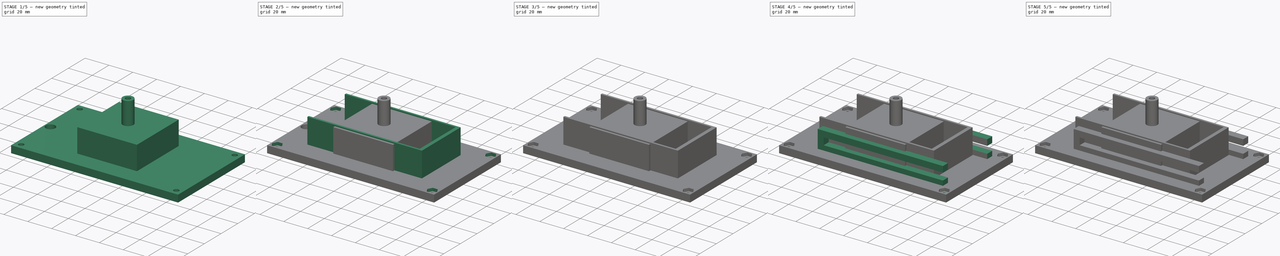
[diagram: build sequence overview — one tinted view per stage of 5, left to right]
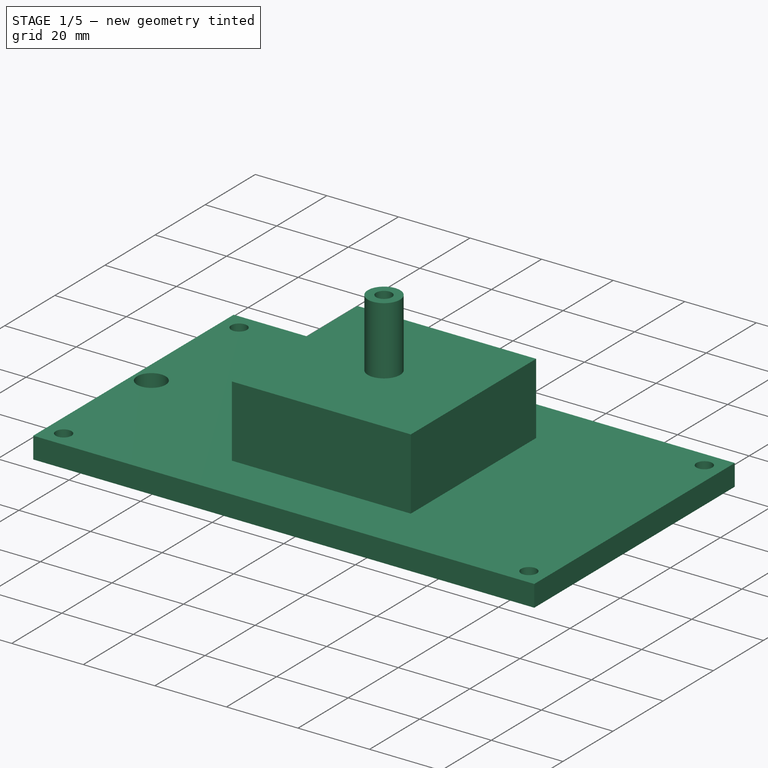
[diagram: stage 1 of 5 — iso view after this stage's code; geometry added in this stage tinted green]
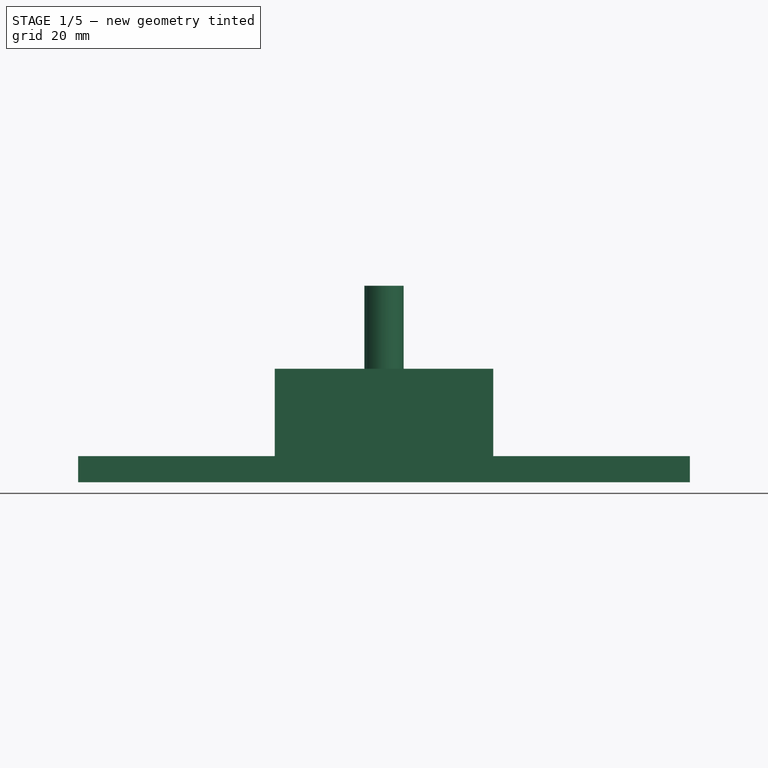
[diagram: stage 1 of 5 — front view after this stage's code; geometry added in this stage tinted green]
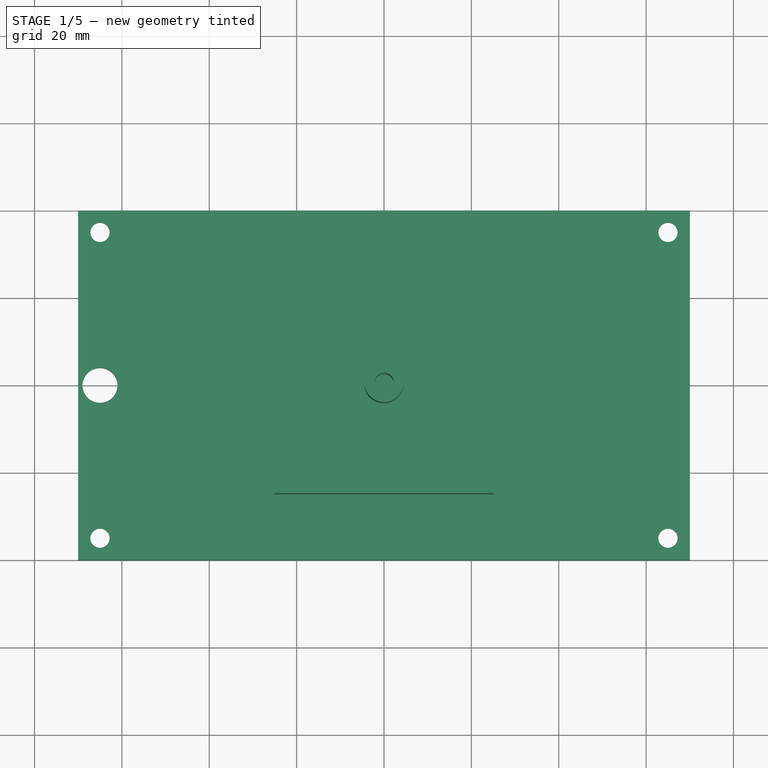
[diagram: stage 1 of 5 — top view after this stage's code; geometry added in this stage tinted green]
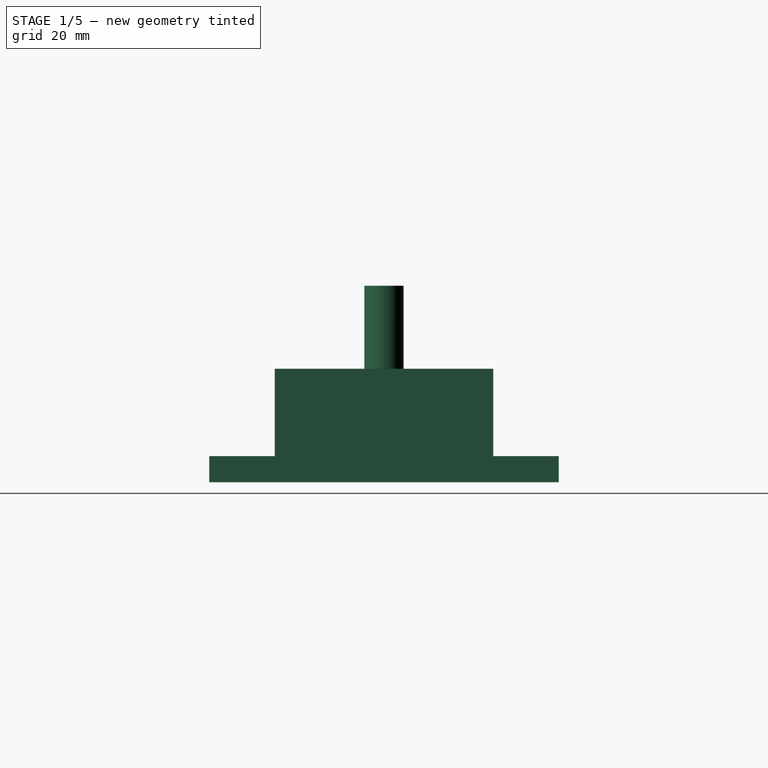
[diagram: stage 1 of 5 — right view after this stage's code; geometry added in this stage tinted green]
FCSTD DOCUMENT  (FreeCAD 1.0R39319 (Git))
Label: ROBOT
License: All rights reserved
LicenseURL: https://en.wikipedia.org/wiki/All_rights_reserved
objects: Sketcher::SketchObject×21, PartDesign::Pocket×12, PartDesign::Pad×10, PartDesign::Body×6
note: 114 computed .brp shape members not serialized (recipe doc carries the construction recipe); baked Part::Feature solids carry a one-line shape summary decoded from their .brp

FEATURE [PartDesign::Body] Body003  label="battery hold"
  AllowCompound = false
  Group = -> [Sketch012,Pad004,Pad005,Sketch013,Pocket008,Sketch014,Pocket009,Sketch015,Pad006]
  Origin = -> Origin003
  Tip = -> Pad006
FEATURE [Sketcher::SketchObject] Sketch016
  ArcFitTolerance = 1e-06
  AttachmentSupport = -> [XY_Plane004]
  FullyConstrained = true
  MakeInternals = false
  MapMode = 5
  sketch-geometry (14):
    g0: LineSegment StartX=-70 StartY=40 StartZ=0 EndX=-70 EndY=-40 EndZ=0
    g1: LineSegment StartX=-70 StartY=-40 StartZ=0 EndX=70 EndY=-40 EndZ=0
    g2: LineSegment StartX=70 StartY=-40 StartZ=0 EndX=70 EndY=40 EndZ=0
    g3: LineSegment StartX=70 StartY=40 StartZ=0 EndX=-70 EndY=40 EndZ=0
    g4: GeomPoint X=-65 Y=35 Z=0
    g5: GeomPoint X=-65 Y=-35 Z=0
    g6: GeomPoint X=65 Y=-35 Z=0
    g7: GeomPoint X=65 Y=35 Z=0
    g8: Circle CenterX=-65 CenterY=35 CenterZ=0 NormalX=0 NormalY=0 NormalZ=1 AngleXU=0 Radius=2.2
    g9: Circle CenterX=-65 CenterY=-35 CenterZ=0 NormalX=0 NormalY=0 NormalZ=1 AngleXU=0 Radius=2.2
    g10: Circle CenterX=65 CenterY=-35 CenterZ=0 NormalX=0 NormalY=0 NormalZ=1 AngleXU=0 Radius=2.2
    g11: Circle CenterX=65 CenterY=35 CenterZ=0 NormalX=0 NormalY=0 NormalZ=1 AngleXU=0 Radius=2.2
    g12: GeomPoint X=-65 Y=0 Z=0
    g13: Circle CenterX=-65 CenterY=0 CenterZ=0 NormalX=0 NormalY=0 NormalZ=1 AngleXU=0 Radius=4
  constraints (27):
    c: Coincident(g0,g1)
    c: Coincident(g1,g2)
    c: Coincident(g2,g3)
    c: Coincident(g3,g0)
    c: Vertical(g2)
    c: Horizontal(g1)
    c: DistanceX(g-1,g2) = 70
    c: DistanceY(g-1,g2) = 40
    c: Symmetric(g0,g2,g-2)
    c: Symmetric(g0,g0,g-1)
    c: DistanceX(g4,g-1) = 65
    c: DistanceY(g-1,g4) = 35
    c: Symmetric(g5,g4,g-1)
    c: Symmetric(g5,g6,g-2)
    c: Symmetric(g7,g6,g-1)
    c: Diameter(g8) = 4.4
    c: Coincident(g8,g4)
    c: Diameter(g9) = 4.4
    c: Coincident(g9,g5)
    c: Diameter(g10) = 4.4
    c: Coincident(g10,g6)
    c: Diameter(g11) = 4.4
    c: Coincident(g11,g7)
    c: DistanceY(g-1,g12) = 0
    c: DistanceX(g12,g-1) = 65
    c: Diameter(g13) = 8
    c: Coincident(g13,g12)
FEATURE [PartDesign::Pad] Pad007
  Direction = (0,0,1)
  Length = 6
  Length2 = 10
  Profile = -> Sketch016
  ReferenceAxis = -> Sketch016 [N_Axis]
  Refine = true
  Suppressed = false
  Type = 0
FEATURE [Sketcher::SketchObject] Sketch017
  ArcFitTolerance = 1e-06
  AttachmentSupport = -> [Pad007]
  FullyConstrained = true
  MakeInternals = false
  MapMode = 5
  Placement = pos=(0,0,6) rot=(0,0,1;0rad)
  sketch-geometry (4):
    g0: LineSegment StartX=-25 StartY=25 StartZ=0 EndX=-25 EndY=-25 EndZ=0
    g1: LineSegment StartX=-25 StartY=-25 StartZ=0 EndX=25 EndY=-25 EndZ=0
    g2: LineSegment StartX=25 StartY=-25 StartZ=0 EndX=25 EndY=25 EndZ=0
    g3: LineSegment StartX=25 StartY=25 StartZ=0 EndX=-25 EndY=25 EndZ=0
  constraints (10):
    c: Coincident(g0,g1)
    c: Coincident(g1,g2)
    c: Coincident(g2,g3)
    c: Coincident(g3,g0)
    c: Vertical(g0)
    c: Horizontal(g1)
    c: DistanceX(g-1,g1) = 25
    c: DistanceY(g1,g-1) = 25
    c: Symmetric(g2,g1,g-1)
    c: Symmetric(g0,g2,g-2)
FEATURE [PartDesign::Pad] Pad008
  BaseFeature = -> Pad007
  Direction = (0,0,1)
  Length = 20
  Length2 = 10
  Profile = -> Sketch017
  ReferenceAxis = -> Sketch017 [N_Axis]
  Refine = true
  Suppressed = false
  Type = 0
FEATURE [Sketcher::SketchObject] Sketch018
  ArcFitTolerance = 1e-06
  AttachmentSupport = -> [Pad008]
  FullyConstrained = true
  MakeInternals = false
  MapMode = 5
  Placement = pos=(0,0,0) rot=(1,0,0;3.14159rad)
  sketch-geometry (32):
    g0: GeomPoint X=-65 Y=35 Z=0
    g1: GeomPoint X=-65 Y=-35 Z=0
    g2: GeomPoint X=65 Y=-35 Z=0
    g3: GeomPoint X=65 Y=35 Z=0
    g4: LineSegment StartX=-62.925 StartY=31.406 StartZ=0 EndX=-60.85 EndY=35 EndZ=0
    g5: LineSegment StartX=-60.85 StartY=35 StartZ=0 EndX=-62.925 EndY=38.594 EndZ=0
    g6: LineSegment StartX=-62.925 StartY=38.594 StartZ=0 EndX=-67.075 EndY=38.594 EndZ=0
    g7: LineSegment StartX=-67.075 StartY=38.594 StartZ=0 EndX=-69.15 EndY=35 EndZ=0
    g8: LineSegment StartX=-69.15 StartY=35 StartZ=0 EndX=-67.075 EndY=31.406 EndZ=0
    g9: LineSegment StartX=-67.075 StartY=31.406 StartZ=0 EndX=-62.925 EndY=31.406 EndZ=0
    g10: Circle [constr] CenterX=-65 CenterY=35 CenterZ=0 NormalX=0 NormalY=0 NormalZ=1 AngleXU=0 Radius=4.15
    g11: LineSegment StartX=-60.85 StartY=-35 StartZ=0 EndX=-62.925 EndY=-31.406 EndZ=0
    g12: LineSegment StartX=-62.925 StartY=-31.406 StartZ=0 EndX=-67.075 EndY=-31.406 EndZ=0
    g13: LineSegment StartX=-67.075 StartY=-31.406 StartZ=0 EndX=-69.15 EndY=-35 EndZ=0
    g14: LineSegment StartX=-69.15 StartY=-35 StartZ=0 EndX=-67.075 EndY=-38.594 EndZ=0
    g15: LineSegment StartX=-67.075 StartY=-38.594 StartZ=0 EndX=-62.925 EndY=-38.594 EndZ=0
    g16: LineSegment StartX=-62.925 StartY=-38.594 StartZ=0 EndX=-60.85 EndY=-35 EndZ=0
    g17: Circle [constr] CenterX=-65 CenterY=-35 CenterZ=0 NormalX=0 NormalY=0 NormalZ=1 AngleXU=0 Radius=4.15
    g18: LineSegment StartX=67.075 StartY=-38.594 StartZ=0 EndX=69.15 EndY=-35 EndZ=0
    g19: LineSegment StartX=69.15 StartY=-35 StartZ=0 EndX=67.075 EndY=-31.406 EndZ=0
    g20: LineSegment StartX=67.075 StartY=-31.406 StartZ=0 EndX=62.925 EndY=-31.406 EndZ=0
    g21: LineSegment StartX=62.925 StartY=-31.406 StartZ=0 EndX=60.85 EndY=-35 EndZ=0
    g22: LineSegment StartX=60.85 StartY=-35 StartZ=0 EndX=62.925 EndY=-38.594 EndZ=0
    g23: LineSegment StartX=62.925 StartY=-38.594 StartZ=0 EndX=67.075 EndY=-38.594 EndZ=0
    g24: Circle [constr] CenterX=65 CenterY=-35 CenterZ=0 NormalX=0 NormalY=0 NormalZ=1 AngleXU=0 Radius=4.15
    g25: LineSegment StartX=67.075 StartY=31.406 StartZ=0 EndX=69.15 EndY=35 EndZ=0
    g26: LineSegment StartX=69.15 StartY=35 StartZ=0 EndX=67.075 EndY=38.594 EndZ=0
    g27: LineSegment StartX=67.075 StartY=38.594 StartZ=0 EndX=62.925 EndY=38.594 EndZ=0
    g28: LineSegment StartX=62.925 StartY=38.594 StartZ=0 EndX=60.85 EndY=35 EndZ=0
    g29: LineSegment StartX=60.85 StartY=35 StartZ=0 EndX=62.925 EndY=31.406 EndZ=0
    g30: LineSegment StartX=62.925 StartY=31.406 StartZ=0 EndX=67.075 EndY=31.406 EndZ=0
    g31: Circle [constr] CenterX=65 CenterY=35 CenterZ=0 NormalX=0 NormalY=0 NormalZ=1 AngleXU=0 Radius=4.15
  constraints (69):
    c: DistanceX(g0,g-1) = 65
    c: DistanceY(g-1,g0) = 35
    c: Symmetric(g0,g1,g-1)
    c: Symmetric(g1,g2,g-2)
    c: Symmetric(g3,g0,g-2)
    c: Coincident(g4,g5)
    c: Coincident(g5,g6)
    c: Coincident(g6,g7)
    c: Coincident(g7,g8)
    c: Coincident(g8,g9)
    c: Coincident(g9,g4)
    c: Equal(g4, g5-g9) x5
    c: PointOnObject(g4,g10)
    c: PointOnObject(g5,g10)
    c: PointOnObject(g6,g10)
    c: PointOnObject(g7,g10)
    c: PointOnObject(g8,g10)
    c: PointOnObject(g9,g10)
    c: Coincident(g10,g0)
    c: Coincident(g11,g12)
    c: Coincident(g12,g13)
    c: Coincident(g13,g14)
    c: Coincident(g14,g15)
    c: Coincident(g15,g16)
    c: Coincident(g16,g11)
    c: Equal(g11, g12-g16) x5
    c: PointOnObject(g11,g17)
    c: PointOnObject(g12,g17)
    c: PointOnObject(g13,g17)
    c: PointOnObject(g14,g17)
    c: PointOnObject(g15,g17)
    c: PointOnObject(g16,g17)
    c: Coincident(g17,g1)
    c: Coincident(g18,g19)
    c: Coincident(g19,g20)
    c: Coincident(g20,g21)
    c: Coincident(g21,g22)
    c: Coincident(g22,g23)
    c: Coincident(g23,g18)
    c: Equal(g18, g19-g23) x5
    c: PointOnObject(g18,g24)
    c: PointOnObject(g19,g24)
    c: PointOnObject(g20,g24)
    c: PointOnObject(g21,g24)
    c: PointOnObject(g22,g24)
    c: PointOnObject(g23,g24)
    c: Coincident(g24,g2)
    c: Coincident(g25,g26)
    c: Coincident(g26,g27)
    c: Coincident(g27,g28)
    c: Coincident(g28,g29)
    c: Coincident(g29,g30)
    c: Coincident(g30,g25)
    c: Equal(g25, g26-g30) x5
    c: PointOnObject(g25,g31)
    c: PointOnObject(g26,g31)
    c: PointOnObject(g27,g31)
    c: PointOnObject(g28,g31)
    c: PointOnObject(g29,g31)
    c: PointOnObject(g30,g31)
    c: Coincident(g31,g3)
    c: Horizontal(g27)
    c: Distance(g27,g25) = 8.3
    c: Horizontal(g6)
    c: Distance(g6,g4) = 8.3
    c: Horizontal(g12)
    c: Distance(g12,g15) = 8.3
    c: Horizontal(g20)
    c: Distance(g20,g18) = 8.3
FEATURE [PartDesign::Pocket] Pocket010
  BaseFeature = -> Pad008
  Direction = (0,0,1)
  Length = 3.2
  Length2 = 5
  Profile = -> Sketch018
  ReferenceAxis = -> Sketch018 [N_Axis]
  Refine = true
  Suppressed = false
  Type = 0
FEATURE [PartDesign::Body] Body004  label="HEAD"
  AllowCompound = false
  Group = -> [Sketch016,Pad007,Sketch017,Pad008,Sketch018,Pocket010,Sketch019,Pocket011]
  Origin = -> Origin004
  Tip = -> Pocket011
FEATURE [Sketcher::SketchObject] Sketch020
  ArcFitTolerance = 1e-06
  AttachmentSupport = -> [XY_Plane005]
  FullyConstrained = true
  MakeInternals = false
  MapMode = 5
  sketch-geometry (3):
    g0: GeomPoint X=0 Y=0 Z=0
    g1: Circle CenterX=0 CenterY=0 CenterZ=0 NormalX=0 NormalY=0 NormalZ=1 AngleXU=0 Radius=2.2
    g2: Circle CenterX=0 CenterY=0 CenterZ=0 NormalX=0 NormalY=0 NormalZ=1 AngleXU=0 Radius=4.5
  constraints (6):
    c: DistanceY(g-1,g0) = 0
    c: DistanceX(g-1,g0) = 0
    c: Diameter(g1) = 4.4
    c: Coincident(g1,g0)
    c: Diameter(g2) = 9
    c: Coincident(g2,g0)
FEATURE [PartDesign::Pad] Pad009
  Direction = (0,0,1)
  Length = 45
  Length2 = 10
  Profile = -> Sketch020
  ReferenceAxis = -> Sketch020 [N_Axis]
  Refine = true
  Suppressed = false
  Type = 0
FEATURE [PartDesign::Body] Body005  label="Legs 45"
  AllowCompound = false
  Group = -> [Sketch020,Pad009]
  Origin = -> Origin005
  Tip = -> Pad009
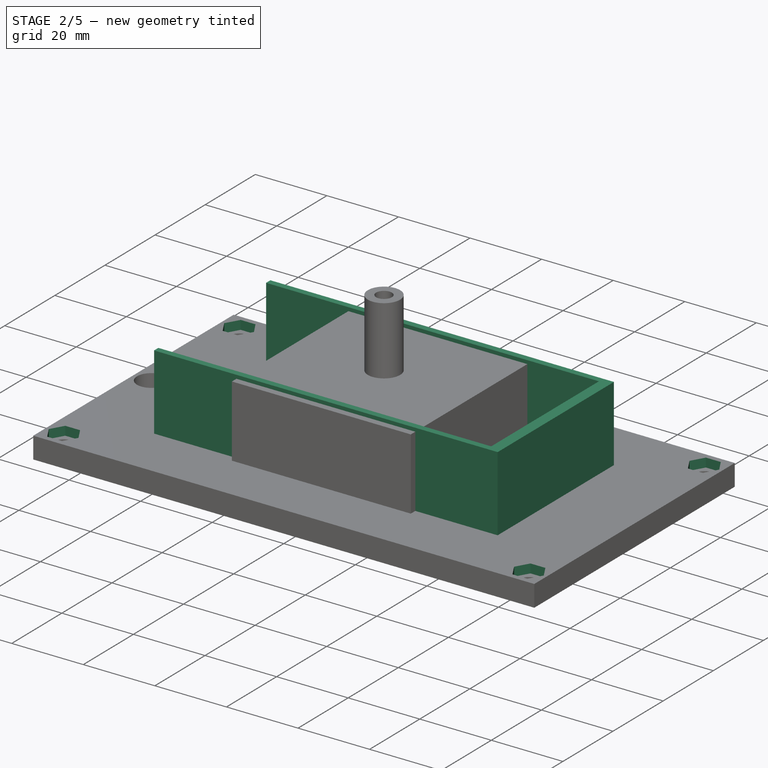
[diagram: stage 2 of 5 — iso view after this stage's code; geometry added in this stage tinted green]
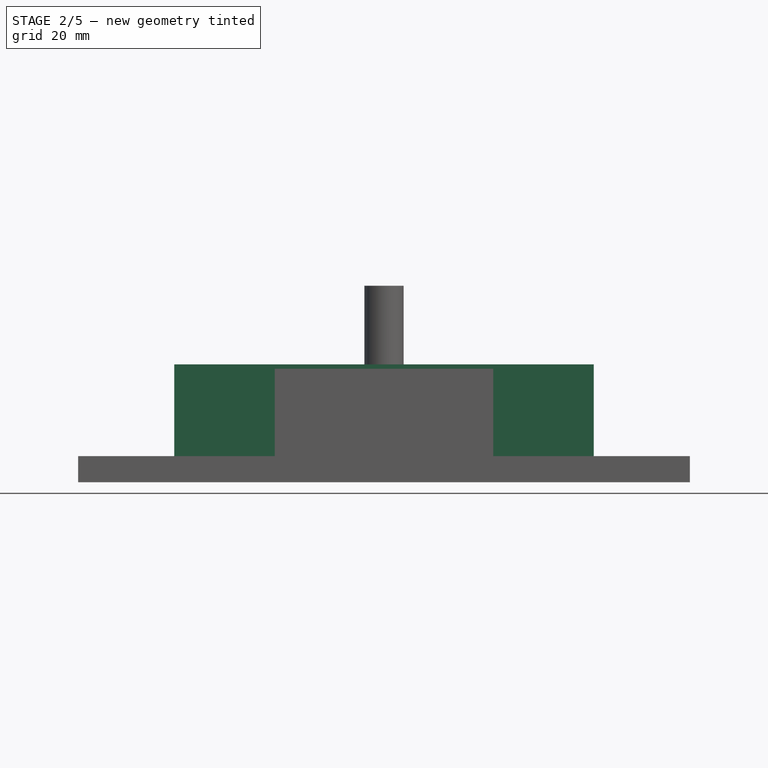
[diagram: stage 2 of 5 — front view after this stage's code; geometry added in this stage tinted green]
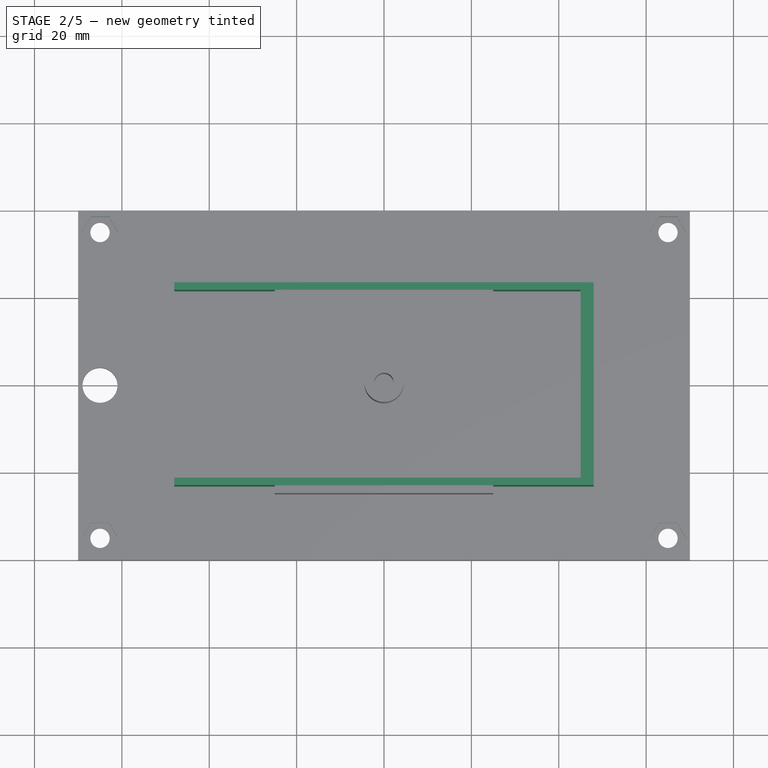
[diagram: stage 2 of 5 — top view after this stage's code; geometry added in this stage tinted green]
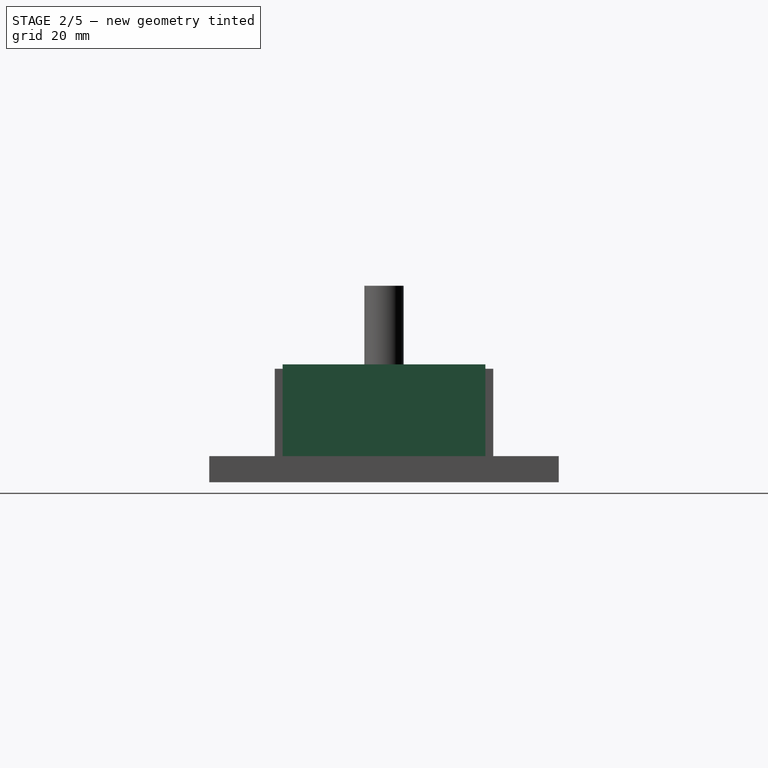
[diagram: stage 2 of 5 — right view after this stage's code; geometry added in this stage tinted green]
FEATURE [PartDesign::Body] Body001  label="battery plat"
  AllowCompound = false
  Group = -> [Sketch003,Pad001,Sketch004,Pocket002,Sketch005,Pocket003,Sketch009,Pad003,Sketch010,Pocket006,Sketch011,Pocket007]
  Origin = -> Origin001
  Tip = -> Pocket007
FEATURE [Sketcher::SketchObject] Sketch012
  ArcFitTolerance = 1e-06
  AttachmentSupport = -> [XY_Plane003]
  FullyConstrained = true
  MakeInternals = false
  MapMode = 5
  sketch-geometry (4):
    g0: LineSegment StartX=-48 StartY=23.2 StartZ=0 EndX=-48 EndY=-23.2 EndZ=0
    g1: LineSegment StartX=-48 StartY=-23.2 StartZ=0 EndX=48 EndY=-23.2 EndZ=0
    g2: LineSegment StartX=48 StartY=-23.2 StartZ=0 EndX=48 EndY=23.2 EndZ=0
    g3: LineSegment StartX=48 StartY=23.2 StartZ=0 EndX=-48 EndY=23.2 EndZ=0
  constraints (10):
    c: Coincident(g0,g1)
    c: Coincident(g1,g2)
    c: Coincident(g2,g3)
    c: Coincident(g3,g0)
    c: Vertical(g2)
    c: Horizontal(g1)
    c: DistanceX(g-1,g2) = 48
    c: DistanceY(g-1,g2) = 23.2
    c: Symmetric(g0,g2,g-2)
    c: Symmetric(g0,g0,g-1)
FEATURE [PartDesign::Pad] Pad004
  Direction = (0,0,1)
  Length = 3.5
  Length2 = 10
  Profile = -> Sketch012
  ReferenceAxis = -> Sketch012 [N_Axis]
  Refine = true
  Suppressed = false
  Type = 0
FEATURE [PartDesign::Pad] Pad005
  BaseFeature = -> Pad004
  Direction = (0,0,1)
  Length = 27
  Length2 = 10
  Profile = -> Sketch012
  ReferenceAxis = -> Sketch012 [N_Axis]
  Refine = true
  Suppressed = false
  Type = 0
FEATURE [Sketcher::SketchObject] Sketch013
  ArcFitTolerance = 1e-06
  AttachmentSupport = -> [Pad005]
  FullyConstrained = true
  MakeInternals = false
  MapMode = 5
  Placement = pos=(0,0,27) rot=(0,0,1;0rad)
  sketch-geometry (4):
    g0: LineSegment StartX=-45 StartY=21.5 StartZ=0 EndX=-45 EndY=-21.5 EndZ=0
    g1: LineSegment StartX=-45 StartY=-21.5 StartZ=0 EndX=45 EndY=-21.5 EndZ=0
    g2: LineSegment StartX=45 StartY=-21.5 StartZ=0 EndX=45 EndY=21.5 EndZ=0
    g3: LineSegment StartX=45 StartY=21.5 StartZ=0 EndX=-45 EndY=21.5 EndZ=0
  constraints (10):
    c: Coincident(g0,g1)
    c: Coincident(g1,g2)
    c: Coincident(g2,g3)
    c: Coincident(g3,g0)
    c: Vertical(g2)
    c: Horizontal(g1)
    c: DistanceY(g1,g-1) = 21.5
    c: DistanceX(g-1,g1) = 45
    c: Symmetric(g0,g2,g-2)
    c: Symmetric(g0,g0,g-1)
FEATURE [PartDesign::Pocket] Pocket008
  BaseFeature = -> Pad005
  Direction = (0,0,-1)
  Length = 24
  Length2 = 5
  Profile = -> Sketch013
  ReferenceAxis = -> Sketch013 [N_Axis]
  Refine = true
  Suppressed = false
  Type = 0
FEATURE [Sketcher::SketchObject] Sketch014
  ArcFitTolerance = 1e-06
  AttachmentSupport = -> [Pocket008]
  FullyConstrained = true
  MakeInternals = false
  MapMode = 5
  Placement = pos=(-48,0,0) rot=(0.57735,-0.57735,-0.57735;2.0944rad)
  sketch-geometry (4):
    g0: LineSegment StartX=-21.5 StartY=27 StartZ=0 EndX=-21.5 EndY=3 EndZ=0
    g1: LineSegment StartX=-21.5 StartY=3 StartZ=0 EndX=21.5 EndY=3 EndZ=0
    g2: LineSegment StartX=21.5 StartY=3 StartZ=0 EndX=21.5 EndY=27 EndZ=0
    g3: LineSegment StartX=21.5 StartY=27 StartZ=0 EndX=-21.5 EndY=27 EndZ=0
  constraints (11):
    c: Coincident(g0,g1)
    c: Coincident(g1,g2)
    c: Coincident(g2,g3)
    c: Coincident(g3,g0)
    c: Vertical(g0)
    c: Vertical(g2)
    c: Horizontal(g3)
    c: Symmetric(g0,g1,g-2)
    c: DistanceX(g-1,g1) = 21.5
    c: DistanceY(g-1,g1) = 3
    c: DistanceY(g-1,g2) = 27
FEATURE [PartDesign::Pocket] Pocket009
  BaseFeature = -> Pocket008
  Direction = (1,0,0)
  Length = 6
  Length2 = 5
  Profile = -> Sketch014
  ReferenceAxis = -> Sketch014 [N_Axis]
  Refine = true
  Suppressed = false
  Type = 0
FEATURE [Sketcher::SketchObject] Sketch019
  ArcFitTolerance = 1e-06
  AttachmentSupport = -> [Pocket010]
  FullyConstrained = true
  MakeInternals = false
  MapMode = 5
  Placement = pos=(0,0,6) rot=(0,0,1;0rad)
  sketch-geometry (32):
    g0: GeomPoint X=-65 Y=35 Z=0
    g1: GeomPoint X=-65 Y=-35 Z=0
    g2: GeomPoint X=65 Y=-35 Z=0
    g3: GeomPoint X=65 Y=35 Z=0
    g4: LineSegment StartX=-62.925 StartY=31.406 StartZ=0 EndX=-60.85 EndY=35 EndZ=0
    g5: LineSegment StartX=-60.85 StartY=35 StartZ=0 EndX=-62.925 EndY=38.594 EndZ=0
    g6: LineSegment StartX=-62.925 StartY=38.594 StartZ=0 EndX=-67.075 EndY=38.594 EndZ=0
    g7: LineSegment StartX=-67.075 StartY=38.594 StartZ=0 EndX=-69.15 EndY=35 EndZ=0
    g8: LineSegment StartX=-69.15 StartY=35 StartZ=0 EndX=-67.075 EndY=31.406 EndZ=0
    g9: LineSegment StartX=-67.075 StartY=31.406 StartZ=0 EndX=-62.925 EndY=31.406 EndZ=0
    g10: Circle [constr] CenterX=-65 CenterY=35 CenterZ=0 NormalX=0 NormalY=0 NormalZ=1 AngleXU=0 Radius=4.15
    g11: LineSegment StartX=-60.85 StartY=-35 StartZ=0 EndX=-62.925 EndY=-31.406 EndZ=0
    g12: LineSegment StartX=-62.925 StartY=-31.406 StartZ=0 EndX=-67.075 EndY=-31.406 EndZ=0
    g13: LineSegment StartX=-67.075 StartY=-31.406 StartZ=0 EndX=-69.15 EndY=-35 EndZ=0
    g14: LineSegment StartX=-69.15 StartY=-35 StartZ=0 EndX=-67.075 EndY=-38.594 EndZ=0
    g15: LineSegment StartX=-67.075 StartY=-38.594 StartZ=0 EndX=-62.925 EndY=-38.594 EndZ=0
    g16: LineSegment StartX=-62.925 StartY=-38.594 StartZ=0 EndX=-60.85 EndY=-35 EndZ=0
    g17: Circle [constr] CenterX=-65 CenterY=-35 CenterZ=0 NormalX=0 NormalY=0 NormalZ=1 AngleXU=0 Radius=4.15
    g18: LineSegment StartX=67.075 StartY=-38.594 StartZ=0 EndX=69.15 EndY=-35 EndZ=0
    g19: LineSegment StartX=69.15 StartY=-35 StartZ=0 EndX=67.075 EndY=-31.406 EndZ=0
    g20: LineSegment StartX=67.075 StartY=-31.406 StartZ=0 EndX=62.925 EndY=-31.406 EndZ=0
    g21: LineSegment StartX=62.925 StartY=-31.406 StartZ=0 EndX=60.85 EndY=-35 EndZ=0
    g22: LineSegment StartX=60.85 StartY=-35 StartZ=0 EndX=62.925 EndY=-38.594 EndZ=0
    g23: LineSegment StartX=62.925 StartY=-38.594 StartZ=0 EndX=67.075 EndY=-38.594 EndZ=0
    g24: Circle [constr] CenterX=65 CenterY=-35 CenterZ=0 NormalX=0 NormalY=0 NormalZ=1 AngleXU=0 Radius=4.15
    g25: LineSegment StartX=67.075 StartY=31.406 StartZ=0 EndX=69.15 EndY=35 EndZ=0
    g26: LineSegment StartX=69.15 StartY=35 StartZ=0 EndX=67.075 EndY=38.594 EndZ=0
    g27: LineSegment StartX=67.075 StartY=38.594 StartZ=0 EndX=62.925 EndY=38.594 EndZ=0
    g28: LineSegment StartX=62.925 StartY=38.594 StartZ=0 EndX=60.85 EndY=35 EndZ=0
    g29: LineSegment StartX=60.85 StartY=35 StartZ=0 EndX=62.925 EndY=31.406 EndZ=0
    g30: LineSegment StartX=62.925 StartY=31.406 StartZ=0 EndX=67.075 EndY=31.406 EndZ=0
    g31: Circle [constr] CenterX=65 CenterY=35 CenterZ=0 NormalX=0 NormalY=0 NormalZ=1 AngleXU=0 Radius=4.15
  constraints (69):
    c: DistanceX(g0,g-1) = 65
    c: DistanceY(g-1,g0) = 35
    c: Symmetric(g0,g1,g-1)
    c: Symmetric(g1,g2,g-2)
    c: Symmetric(g3,g2,g-1)
    c: Coincident(g4,g5)
    c: Coincident(g5,g6)
    c: Coincident(g6,g7)
    c: Coincident(g7,g8)
    c: Coincident(g8,g9)
    c: Coincident(g9,g4)
    c: Equal(g4, g5-g9) x5
    c: PointOnObject(g4,g10)
    c: PointOnObject(g5,g10)
    c: PointOnObject(g6,g10)
    c: PointOnObject(g7,g10)
    c: PointOnObject(g8,g10)
    c: PointOnObject(g9,g10)
    c: Coincident(g10,g0)
    c: Coincident(g11,g12)
    c: Coincident(g12,g13)
    c: Coincident(g13,g14)
    c: Coincident(g14,g15)
    c: Coincident(g15,g16)
    c: Coincident(g16,g11)
    c: Equal(g11, g12-g16) x5
    c: PointOnObject(g11,g17)
    c: PointOnObject(g12,g17)
    c: PointOnObject(g13,g17)
    c: PointOnObject(g14,g17)
    c: PointOnObject(g15,g17)
    c: PointOnObject(g16,g17)
    c: Coincident(g17,g1)
    c: Coincident(g18,g19)
    c: Coincident(g19,g20)
    c: Coincident(g20,g21)
    c: Coincident(g21,g22)
    c: Coincident(g22,g23)
    c: Coincident(g23,g18)
    c: Equal(g18, g19-g23) x5
    c: PointOnObject(g18,g24)
    c: PointOnObject(g19,g24)
    c: PointOnObject(g20,g24)
    c: PointOnObject(g21,g24)
    c: PointOnObject(g22,g24)
    c: PointOnObject(g23,g24)
    c: Coincident(g24,g2)
    c: Coincident(g25,g26)
    c: Coincident(g26,g27)
    c: Coincident(g27,g28)
    c: Coincident(g28,g29)
    c: Coincident(g29,g30)
    c: Coincident(g30,g25)
    c: Equal(g25, g26-g30) x5
    c: PointOnObject(g25,g31)
    c: PointOnObject(g26,g31)
    c: PointOnObject(g27,g31)
    c: PointOnObject(g28,g31)
    c: PointOnObject(g29,g31)
    c: PointOnObject(g30,g31)
    c: Coincident(g31,g3)
    c: Horizontal(g27)
    c: Distance(g27,g25) = 8.3
    c: Horizontal(g6)
    c: Distance(g6,g4) = 8.3
    c: Horizontal(g12)
    c: Distance(g12,g15) = 8.3
    c: Horizontal(g20)
    c: Distance(g20,g18) = 8.3
FEATURE [PartDesign::Pocket] Pocket011
  BaseFeature = -> Pocket010
  Direction = (0,0,-1)
  Length = 2.5
  Length2 = 5
  Profile = -> Sketch019
  ReferenceAxis = -> Sketch019 [N_Axis]
  Refine = true
  Suppressed = false
  Type = 0
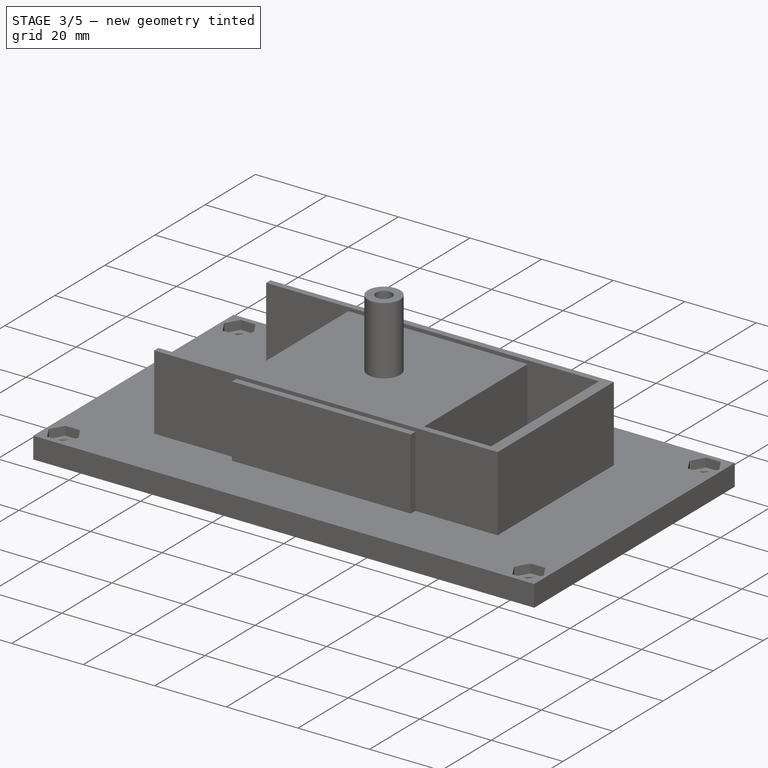
[diagram: stage 3 of 5 — iso view after this stage's code; geometry added in this stage tinted green]
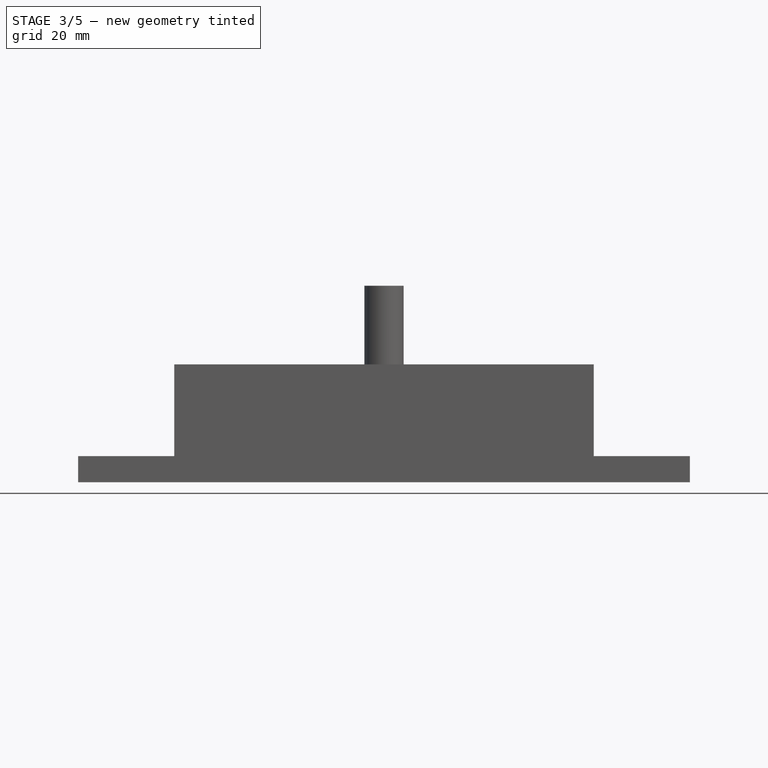
[diagram: stage 3 of 5 — front view after this stage's code; geometry added in this stage tinted green]
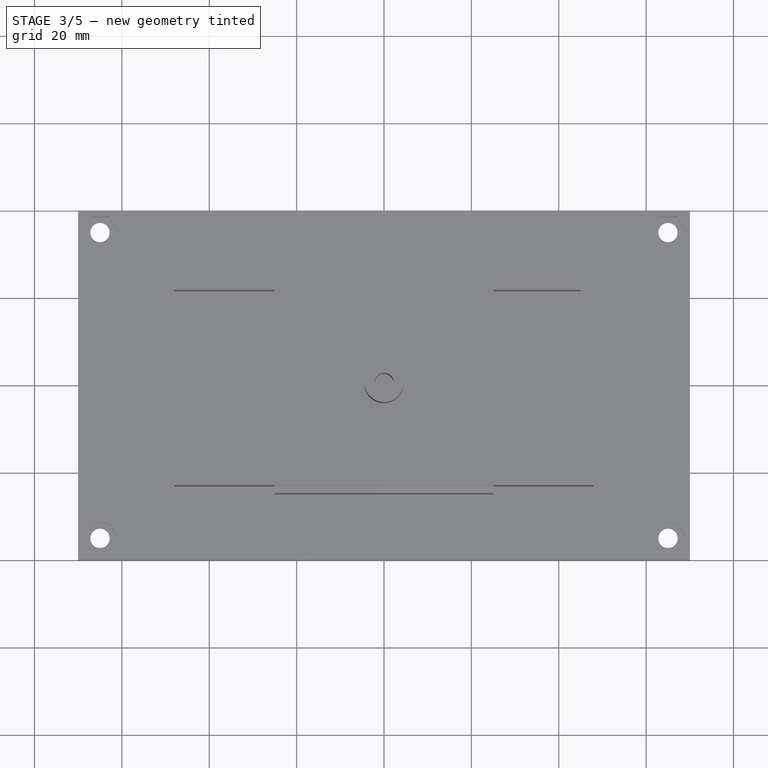
[diagram: stage 3 of 5 — top view after this stage's code; geometry added in this stage tinted green]
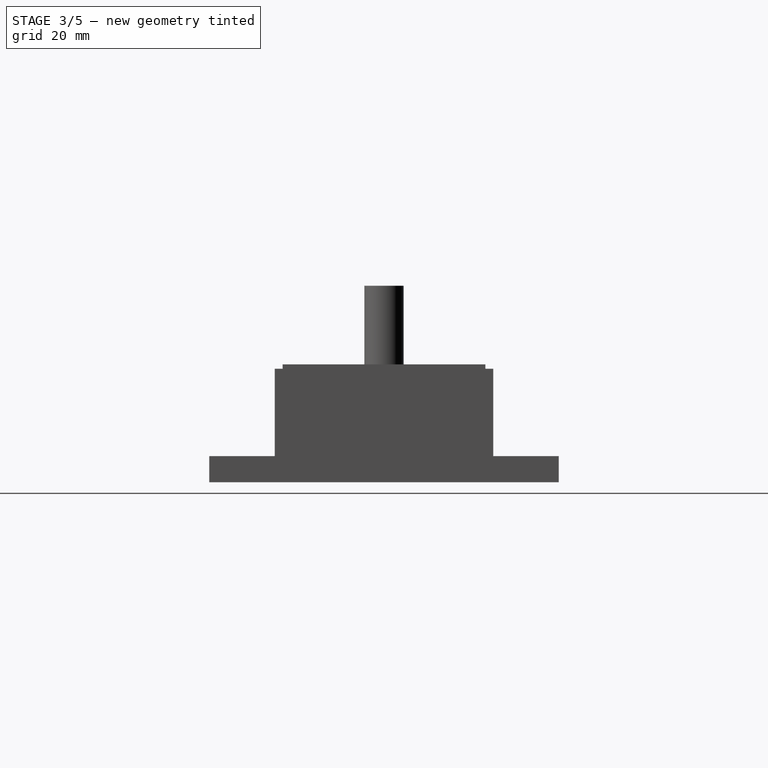
[diagram: stage 3 of 5 — right view after this stage's code; geometry added in this stage tinted green]
FEATURE [PartDesign::Body] Body  label="wheels"
  AllowCompound = false
  Group = -> [Sketch,Pad,Sketch001,Pocket,Sketch002,Pocket001]
  Origin = -> Origin
  Tip = -> Pocket001
FEATURE [Sketcher::SketchObject] Sketch003
  ArcFitTolerance = 1e-06
  AttachmentSupport = -> [XY_Plane001]
  FullyConstrained = true
  MakeInternals = false
  MapMode = 5
  sketch-geometry (24):
    g0: LineSegment StartX=-70 StartY=40 StartZ=0 EndX=-70 EndY=-40 EndZ=0
    g1: LineSegment StartX=-70 StartY=-40 StartZ=0 EndX=70 EndY=-40 EndZ=0
    g2: LineSegment StartX=70 StartY=-40 StartZ=0 EndX=70 EndY=40 EndZ=0
    g3: LineSegment StartX=70 StartY=40 StartZ=0 EndX=-70 EndY=40 EndZ=0
    g4: GeomPoint X=-65 Y=35 Z=0
    g5: GeomPoint X=-65 Y=-35 Z=0
    g6: GeomPoint X=65 Y=-35 Z=0
    g7: GeomPoint X=65 Y=35 Z=0
    g8: Circle CenterX=-65 CenterY=35 CenterZ=0 NormalX=0 NormalY=0 NormalZ=1 AngleXU=0 Radius=2.2
    g9: Circle CenterX=-65 CenterY=-35 CenterZ=0 NormalX=0 NormalY=0 NormalZ=1 AngleXU=0 Radius=2.2
    g10: Circle CenterX=65 CenterY=-35 CenterZ=0 NormalX=0 NormalY=0 NormalZ=1 AngleXU=0 Radius=2.2
    g11: Circle CenterX=65 CenterY=35 CenterZ=0 NormalX=0 NormalY=0 NormalZ=1 AngleXU=0 Radius=2.2
    g12: GeomPoint X=-18.5 Y=18.5 Z=0
    g13: GeomPoint X=-18.5 Y=-18.5 Z=0
    g14: GeomPoint X=18.5 Y=-18.5 Z=0
    g15: GeomPoint X=18.5 Y=18.5 Z=0
    g16: Circle CenterX=-18.5 CenterY=18.5 CenterZ=0 NormalX=0 NormalY=0 NormalZ=1 AngleXU=0 Radius=1.6
    g17: Circle CenterX=-18.5 CenterY=-18.5 CenterZ=0 NormalX=0 NormalY=0 NormalZ=1 AngleXU=0 Radius=1.6
    g18: Circle CenterX=18.5 CenterY=-18.5 CenterZ=0 NormalX=0 NormalY=0 NormalZ=1 AngleXU=0 Radius=1.6
    g19: Circle CenterX=18.5 CenterY=18.5 CenterZ=0 NormalX=0 NormalY=0 NormalZ=1 AngleXU=0 Radius=1.6
    g20: LineSegment StartX=-60 StartY=18.5 StartZ=0 EndX=-60 EndY=-18.5 EndZ=0
    g21: LineSegment StartX=-60 StartY=-18.5 StartZ=0 EndX=-50 EndY=-18.5 EndZ=0
    g22: LineSegment StartX=-50 StartY=-18.5 StartZ=0 EndX=-50 EndY=18.5 EndZ=0
    g23: LineSegment StartX=-50 StartY=18.5 StartZ=0 EndX=-60 EndY=18.5 EndZ=0
  constraints (47):
    c: Coincident(g0,g1)
    c: Coincident(g1,g2)
    c: Coincident(g2,g3)
    c: Coincident(g3,g0)
    c: Vertical(g0)
    c: Horizontal(g1)
    c: DistanceX(g-1,g2) = 70
    c: DistanceY(g-1,g2) = 40
    c: Symmetric(g0,g2,g-2)
    c: Symmetric(g1,g2,g-1)
    c: DistanceX(g4,g-1) = 65
    c: DistanceY(g-1,g4) = 35
    c: Symmetric(g4,g5,g-1)
    c: Symmetric(g5,g6,g-2)
    c: Symmetric(g7,g6,g-1)
    c: Diameter(g8) = 4.4
    c: Coincident(g8,g4)
    c: Diameter(g9) = 4.4
    c: Coincident(g9,g5)
    c: Diameter(g10) = 4.4
    c: Coincident(g10,g6)
    c: Diameter(g11) = 4.4
    c: Coincident(g11,g7)
    c: DistanceX(g12,g-1) = 18.5
    c: DistanceY(g-1,g12) = 18.5
    c: Symmetric(g13,g12,g-1)
    c: Symmetric(g13,g14,g-2)
    c: Symmetric(g15,g14,g-1)
    c: Diameter(g16) = 3.2
    c: Coincident(g16,g12)
    c: Diameter(g17) = 3.2
    c: Coincident(g17,g13)
    c: Diameter(g18) = 3.2
    c: Coincident(g18,g14)
    c: Diameter(g19) = 3.2
    c: Coincident(g19,g15)
    c: Coincident(g20,g21)
    c: Coincident(g21,g22)
    c: Coincident(g22,g23)
    c: Coincident(g23,g20)
    c: Vertical(g20)
    c: Horizontal(g21)
    c: Horizontal(g23)
    c: DistanceX(g21,g-1) = 50
    c: DistanceX(g20,g-1) = 60
    c: DistanceY(g21,g-1) = 18.5
    c: Symmetric(g22,g21,g-1)
FEATURE [PartDesign::Pad] Pad001
  Direction = (0,0,1)
  Length = 6
  Length2 = 10
  Profile = -> Sketch003
  ReferenceAxis = -> Sketch003 [N_Axis]
  Refine = true
  Suppressed = false
  Type = 0
FEATURE [Sketcher::SketchObject] Sketch004
  ArcFitTolerance = 1e-06
  AttachmentSupport = -> [Pad001]
  FullyConstrained = true
  MakeInternals = false
  MapMode = 5
  Placement = pos=(0,0,0) rot=(1,0,0;3.14159rad)
  sketch-geometry (32):
    g0: GeomPoint X=-65 Y=35 Z=0
    g1: GeomPoint X=-65 Y=-35 Z=0
    g2: GeomPoint X=65 Y=-35 Z=0
    g3: GeomPoint X=65 Y=35 Z=0
    g4: LineSegment StartX=-62.925 StartY=31.406 StartZ=0 EndX=-60.85 EndY=35 EndZ=0
    g5: LineSegment StartX=-60.85 StartY=35 StartZ=0 EndX=-62.925 EndY=38.594 EndZ=0
    g6: LineSegment StartX=-62.925 StartY=38.594 StartZ=0 EndX=-67.075 EndY=38.594 EndZ=0
    g7: LineSegment StartX=-67.075 StartY=38.594 StartZ=0 EndX=-69.15 EndY=35 EndZ=0
    g8: LineSegment StartX=-69.15 StartY=35 StartZ=0 EndX=-67.075 EndY=31.406 EndZ=0
    g9: LineSegment StartX=-67.075 StartY=31.406 StartZ=0 EndX=-62.925 EndY=31.406 EndZ=0
    g10: Circle [constr] CenterX=-65 CenterY=35 CenterZ=0 NormalX=0 NormalY=0 NormalZ=1 AngleXU=0 Radius=4.15
    g11: LineSegment StartX=-60.85 StartY=-35 StartZ=0 EndX=-62.925 EndY=-31.406 EndZ=0
    g12: LineSegment StartX=-62.925 StartY=-31.406 StartZ=0 EndX=-67.075 EndY=-31.406 EndZ=0
    g13: LineSegment StartX=-67.075 StartY=-31.406 StartZ=0 EndX=-69.15 EndY=-35 EndZ=0
    g14: LineSegment StartX=-69.15 StartY=-35 StartZ=0 EndX=-67.075 EndY=-38.594 EndZ=0
    g15: LineSegment StartX=-67.075 StartY=-38.594 StartZ=0 EndX=-62.925 EndY=-38.594 EndZ=0
    g16: LineSegment StartX=-62.925 StartY=-38.594 StartZ=0 EndX=-60.85 EndY=-35 EndZ=0
    g17: Circle [constr] CenterX=-65 CenterY=-35 CenterZ=0 NormalX=0 NormalY=0 NormalZ=1 AngleXU=0 Radius=4.15
    g18: LineSegment StartX=62.925 StartY=-38.594 StartZ=0 EndX=67.075 EndY=-38.594 EndZ=0
    g19: LineSegment StartX=67.075 StartY=-38.594 StartZ=0 EndX=69.15 EndY=-35 EndZ=0
    g20: LineSegment StartX=69.15 StartY=-35 StartZ=0 EndX=67.075 EndY=-31.406 EndZ=0
    g21: LineSegment StartX=67.075 StartY=-31.406 StartZ=0 EndX=62.925 EndY=-31.406 EndZ=0
    g22: LineSegment StartX=62.925 StartY=-31.406 StartZ=0 EndX=60.85 EndY=-35 EndZ=0
    g23: LineSegment StartX=60.85 StartY=-35 StartZ=0 EndX=62.925 EndY=-38.594 EndZ=0
    g24: Circle [constr] CenterX=65 CenterY=-35 CenterZ=0 NormalX=0 NormalY=0 NormalZ=1 AngleXU=0 Radius=4.15
    g25: LineSegment StartX=62.925 StartY=31.406 StartZ=0 EndX=67.075 EndY=31.406 EndZ=0
    g26: LineSegment StartX=67.075 StartY=31.406 StartZ=0 EndX=69.15 EndY=35 EndZ=0
    g27: LineSegment StartX=69.15 StartY=35 StartZ=0 EndX=67.075 EndY=38.594 EndZ=0
    g28: LineSegment StartX=67.075 StartY=38.594 StartZ=0 EndX=62.925 EndY=38.594 EndZ=0
    g29: LineSegment StartX=62.925 StartY=38.594 StartZ=0 EndX=60.85 EndY=35 EndZ=0
    g30: LineSegment StartX=60.85 StartY=35 StartZ=0 EndX=62.925 EndY=31.406 EndZ=0
    g31: Circle [constr] CenterX=65 CenterY=35 CenterZ=0 NormalX=0 NormalY=0 NormalZ=1 AngleXU=0 Radius=4.15
  constraints (69):
    c: DistanceX(g0,g-1) = 65
    c: DistanceY(g-1,g0) = 35
    c: Symmetric(g0,g1,g-1)
    c: Symmetric(g2,g1,g-2)
    c: Symmetric(g3,g2,g-1)
    c: Coincident(g4,g5)
    c: Coincident(g5,g6)
    c: Coincident(g6,g7)
    c: Coincident(g7,g8)
    c: Coincident(g8,g9)
    c: Coincident(g9,g4)
    c: Equal(g4, g5-g9) x5
    c: PointOnObject(g4,g10)
    c: PointOnObject(g5,g10)
    c: PointOnObject(g6,g10)
    c: PointOnObject(g7,g10)
    c: PointOnObject(g8,g10)
    c: PointOnObject(g9,g10)
    c: Coincident(g10,g0)
    c: Coincident(g11,g12)
    c: Coincident(g12,g13)
    c: Coincident(g13,g14)
    c: Coincident(g14,g15)
    c: Coincident(g15,g16)
    c: Coincident(g16,g11)
    c: Equal(g11, g12-g16) x5
    c: PointOnObject(g11,g17)
    c: PointOnObject(g12,g17)
    c: PointOnObject(g13,g17)
    c: PointOnObject(g14,g17)
    c: PointOnObject(g15,g17)
    c: PointOnObject(g16,g17)
    c: Coincident(g17,g1)
    c: Coincident(g18,g19)
    c: Coincident(g19,g20)
    c: Coincident(g20,g21)
    c: Coincident(g21,g22)
    c: Coincident(g22,g23)
    c: Coincident(g23,g18)
    c: Equal(g18, g19-g23) x5
    c: PointOnObject(g18,g24)
    c: PointOnObject(g19,g24)
    c: PointOnObject(g20,g24)
    c: PointOnObject(g21,g24)
    c: PointOnObject(g22,g24)
    c: PointOnObject(g23,g24)
    c: Coincident(g24,g2)
    c: Coincident(g25,g26)
    c: Coincident(g26,g27)
    c: Coincident(g27,g28)
    c: Coincident(g28,g29)
    c: Coincident(g29,g30)
    c: Coincident(g30,g25)
    c: Equal(g25, g26-g30) x5
    c: PointOnObject(g25,g31)
    c: PointOnObject(g26,g31)
    c: PointOnObject(g27,g31)
    c: PointOnObject(g28,g31)
    c: PointOnObject(g29,g31)
    c: PointOnObject(g30,g31)
    c: Coincident(g31,g3)
    c: Horizontal(g28)
    c: Distance(g28,g25) = 8.3
    c: Horizontal(g6)
    c: Distance(g6,g4) = 8.3
    c: Horizontal(g12)
    c: Distance(g12,g15) = 8.3
    c: Horizontal(g21)
    c: Distance(g21,g18) = 8.3
FEATURE [PartDesign::Pocket] Pocket002
  BaseFeature = -> Pad001
  Direction = (0,0,1)
  Length = 3.2
  Length2 = 5
  Profile = -> Sketch004
  ReferenceAxis = -> Sketch004 [N_Axis]
  Refine = true
  Suppressed = false
  Type = 0
FEATURE [Sketcher::SketchObject] Sketch005
  ArcFitTolerance = 1e-06
  AttachmentSupport = -> [Pocket002]
  FullyConstrained = true
  MakeInternals = false
  MapMode = 5
  Placement = pos=(0,0,6) rot=(0,0,1;0rad)
  sketch-geometry (32):
    g0: GeomPoint X=-65 Y=35 Z=0
    g1: GeomPoint X=-65 Y=-35 Z=0
    g2: GeomPoint X=65 Y=-35 Z=0
    g3: GeomPoint X=65 Y=35 Z=0
    g4: LineSegment StartX=-62.925 StartY=31.406 StartZ=0 EndX=-60.85 EndY=35 EndZ=0
    g5: LineSegment StartX=-60.85 StartY=35 StartZ=0 EndX=-62.925 EndY=38.594 EndZ=0
    g6: LineSegment StartX=-62.925 StartY=38.594 StartZ=0 EndX=-67.075 EndY=38.594 EndZ=0
    g7: LineSegment StartX=-67.075 StartY=38.594 StartZ=0 EndX=-69.15 EndY=35 EndZ=0
    g8: LineSegment StartX=-69.15 StartY=35 StartZ=0 EndX=-67.075 EndY=31.406 EndZ=0
    g9: LineSegment StartX=-67.075 StartY=31.406 StartZ=0 EndX=-62.925 EndY=31.406 EndZ=0
    g10: Circle [constr] CenterX=-65 CenterY=35 CenterZ=0 NormalX=0 NormalY=0 NormalZ=1 AngleXU=0 Radius=4.15
    g11: LineSegment StartX=-60.85 StartY=-35 StartZ=0 EndX=-62.925 EndY=-31.406 EndZ=0
    g12: LineSegment StartX=-62.925 StartY=-31.406 StartZ=0 EndX=-67.075 EndY=-31.406 EndZ=0
    g13: LineSegment StartX=-67.075 StartY=-31.406 StartZ=0 EndX=-69.15 EndY=-35 EndZ=0
    g14: LineSegment StartX=-69.15 StartY=-35 StartZ=0 EndX=-67.075 EndY=-38.594 EndZ=0
    g15: LineSegment StartX=-67.075 StartY=-38.594 StartZ=0 EndX=-62.925 EndY=-38.594 EndZ=0
    g16: LineSegment StartX=-62.925 StartY=-38.594 StartZ=0 EndX=-60.85 EndY=-35 EndZ=0
    g17: Circle [constr] CenterX=-65 CenterY=-35 CenterZ=0 NormalX=0 NormalY=0 NormalZ=1 AngleXU=0 Radius=4.15
    g18: LineSegment StartX=62.925 StartY=-38.594 StartZ=0 EndX=67.075 EndY=-38.594 EndZ=0
    g19: LineSegment StartX=67.075 StartY=-38.594 StartZ=0 EndX=69.15 EndY=-35 EndZ=0
    g20: LineSegment StartX=69.15 StartY=-35 StartZ=0 EndX=67.075 EndY=-31.406 EndZ=0
    g21: LineSegment StartX=67.075 StartY=-31.406 StartZ=0 EndX=62.925 EndY=-31.406 EndZ=0
    g22: LineSegment StartX=62.925 StartY=-31.406 StartZ=0 EndX=60.85 EndY=-35 EndZ=0
    g23: LineSegment StartX=60.85 StartY=-35 StartZ=0 EndX=62.925 EndY=-38.594 EndZ=0
    g24: Circle [constr] CenterX=65 CenterY=-35 CenterZ=0 NormalX=0 NormalY=0 NormalZ=1 AngleXU=0 Radius=4.15
    g25: LineSegment StartX=62.925 StartY=31.406 StartZ=0 EndX=67.075 EndY=31.406 EndZ=0
    g26: LineSegment StartX=67.075 StartY=31.406 StartZ=0 EndX=69.15 EndY=35 EndZ=0
    g27: LineSegment StartX=69.15 StartY=35 StartZ=0 EndX=67.075 EndY=38.594 EndZ=0
    g28: LineSegment StartX=67.075 StartY=38.594 StartZ=0 EndX=62.925 EndY=38.594 EndZ=0
    g29: LineSegment StartX=62.925 StartY=38.594 StartZ=0 EndX=60.85 EndY=35 EndZ=0
    g30: LineSegment StartX=60.85 StartY=35 StartZ=0 EndX=62.925 EndY=31.406 EndZ=0
    g31: Circle [constr] CenterX=65 CenterY=35 CenterZ=0 NormalX=0 NormalY=0 NormalZ=1 AngleXU=0 Radius=4.15
  constraints (69):
    c: DistanceX(g0,g-1) = 65
    c: DistanceY(g-1,g0) = 35
    c: Symmetric(g1,g0,g-1)
    c: Symmetric(g3,g0,g-2)
    c: Symmetric(g3,g2,g-1)
    c: Coincident(g4,g5)
    c: Coincident(g5,g6)
    c: Coincident(g6,g7)
    c: Coincident(g7,g8)
    c: Coincident(g8,g9)
    c: Coincident(g9,g4)
    c: Equal(g4, g5-g9) x5
    c: PointOnObject(g4,g10)
    c: PointOnObject(g5,g10)
    c: PointOnObject(g6,g10)
    c: PointOnObject(g7,g10)
    c: PointOnObject(g8,g10)
    c: PointOnObject(g9,g10)
    c: Coincident(g10,g0)
    c: Coincident(g11,g12)
    c: Coincident(g12,g13)
    c: Coincident(g13,g14)
    c: Coincident(g14,g15)
    c: Coincident(g15,g16)
    c: Coincident(g16,g11)
    c: Equal(g11, g12-g16) x5
    c: PointOnObject(g11,g17)
    c: PointOnObject(g12,g17)
    c: PointOnObject(g13,g17)
    c: PointOnObject(g14,g17)
    c: PointOnObject(g15,g17)
    c: PointOnObject(g16,g17)
    c: Coincident(g17,g1)
    c: Coincident(g18,g19)
    c: Coincident(g19,g20)
    c: Coincident(g20,g21)
    c: Coincident(g21,g22)
    c: Coincident(g22,g23)
    c: Coincident(g23,g18)
    c: Equal(g18, g19-g23) x5
    c: PointOnObject(g18,g24)
    c: PointOnObject(g19,g24)
    c: PointOnObject(g20,g24)
    c: PointOnObject(g21,g24)
    c: PointOnObject(g22,g24)
    c: PointOnObject(g23,g24)
    c: Coincident(g24,g2)
    c: Coincident(g25,g26)
    c: Coincident(g26,g27)
    c: Coincident(g27,g28)
    c: Coincident(g28,g29)
    c: Coincident(g29,g30)
    c: Coincident(g30,g25)
    c: Equal(g25, g26-g30) x5
    c: PointOnObject(g25,g31)
    c: PointOnObject(g26,g31)
    c: PointOnObject(g27,g31)
    c: PointOnObject(g28,g31)
    c: PointOnObject(g29,g31)
    c: PointOnObject(g30,g31)
    c: Coincident(g31,g3)
    c: Horizontal(g28)
    c: Distance(g28,g25) = 8.3
    c: Horizontal(g6)
    c: Distance(g6,g4) = 8.3
    c: Horizontal(g12)
    c: Distance(g12,g15) = 8.3
    c: Horizontal(g21)
    c: Distance(g21,g18) = 8.3
FEATURE [PartDesign::Pocket] Pocket003
  BaseFeature = -> Pocket002
  Direction = (0,0,-1)
  Length = 2.5
  Length2 = 5
  Profile = -> Sketch005
  ReferenceAxis = -> Sketch005 [N_Axis]
  Refine = true
  Suppressed = false
  Type = 0
FEATURE [Sketcher::SketchObject] Sketch015
  ArcFitTolerance = 1e-06
  AttachmentSupport = -> [Pocket009]
  FullyConstrained = true
  MakeInternals = false
  MapMode = 5
  Placement = pos=(0,0,0) rot=(1,0,0;3.14159rad)
  sketch-geometry (8):
    g0: LineSegment StartX=-47 StartY=23.2 StartZ=0 EndX=-47 EndY=28.8 EndZ=0
    g1: LineSegment StartX=-47 StartY=28.8 StartZ=0 EndX=47 EndY=28.8 EndZ=0
    g2: LineSegment StartX=47 StartY=28.8 StartZ=0 EndX=47 EndY=23.2 EndZ=0
    g3: LineSegment StartX=47 StartY=23.2 StartZ=0 EndX=-47 EndY=23.2 EndZ=0
    g4: LineSegment StartX=-47 StartY=-23.2 StartZ=0 EndX=-47 EndY=-28.8 EndZ=0
    g5: LineSegment StartX=-47 StartY=-28.8 StartZ=0 EndX=47 EndY=-28.8 EndZ=0
    g6: LineSegment StartX=47 StartY=-28.8 StartZ=0 EndX=47 EndY=-23.2 EndZ=0
    g7: LineSegment StartX=47 StartY=-23.2 StartZ=0 EndX=-47 EndY=-23.2 EndZ=0
  constraints (20):
    c: Coincident(g0,g1)
    c: Coincident(g1,g2)
    c: Coincident(g2,g3)
    c: Coincident(g3,g0)
    c: Vertical(g0)
    c: Vertical(g2)
    c: Horizontal(g3)
    c: DistanceY(g2,g1) = 5.6
    c: DistanceY(g-1,g2) = 23.2
    c: DistanceX(g-1,g1) = 47
    c: Symmetric(g0,g1,g-2)
    c: Coincident(g4,g5)
    c: Coincident(g5,g6)
    c: Coincident(g6,g7)
    c: Coincident(g7,g4)
    c: Vertical(g4)
    c: Horizontal(g7)
    c: Symmetric(g2,g6,g-1)
    c: Symmetric(g5,g1,g-1)
    c: Symmetric(g4,g5,g-2)
FEATURE [PartDesign::Pad] Pad006
  BaseFeature = -> Pocket009
  Direction = (0,0,-1)
  Length = 0
  Length2 = 5
  Profile = -> Sketch015
  ReferenceAxis = -> Sketch015 [N_Axis]
  Refine = true
  Suppressed = false
  Type = 4
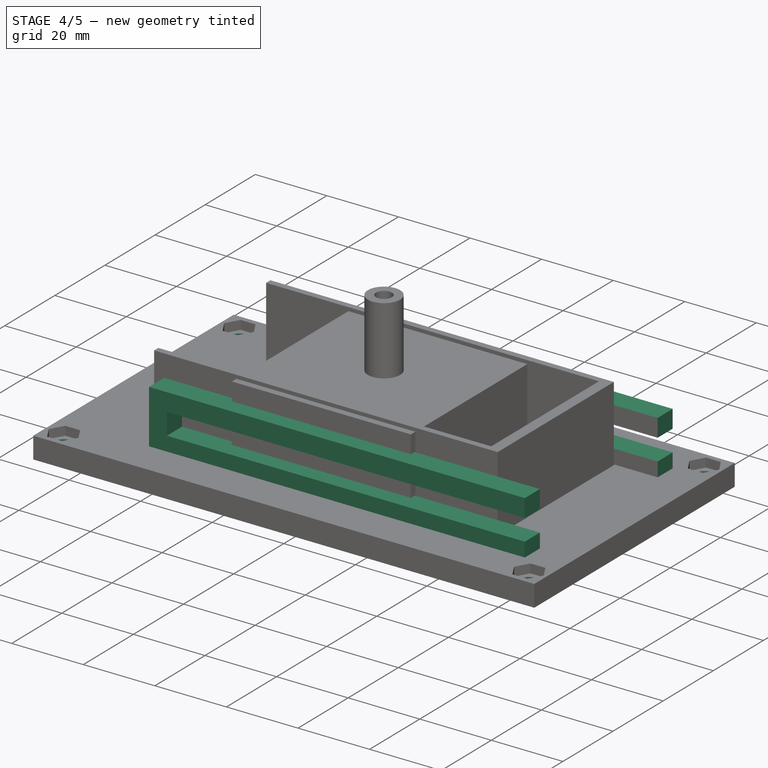
[diagram: stage 4 of 5 — iso view after this stage's code; geometry added in this stage tinted green]
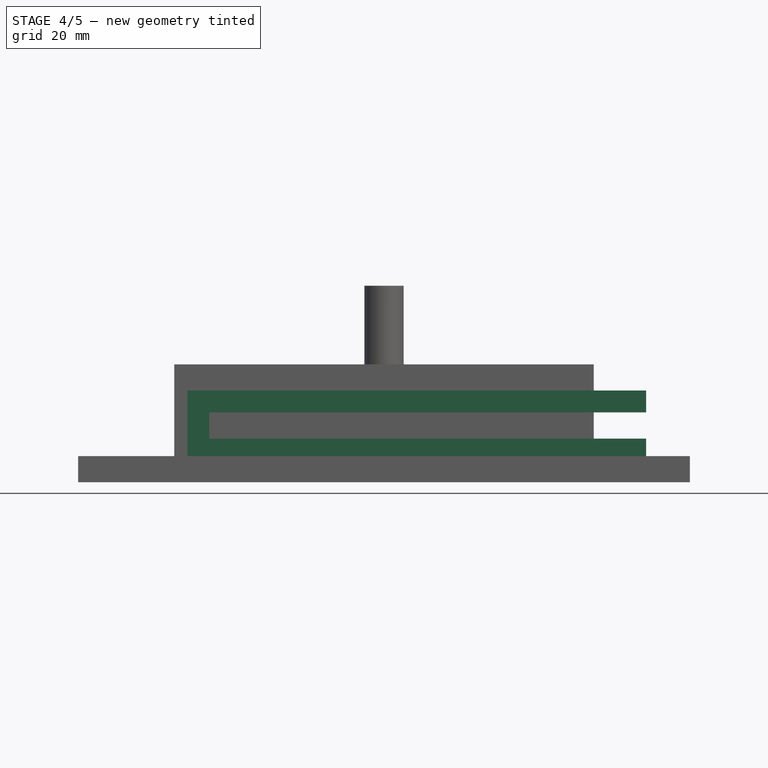
[diagram: stage 4 of 5 — front view after this stage's code; geometry added in this stage tinted green]
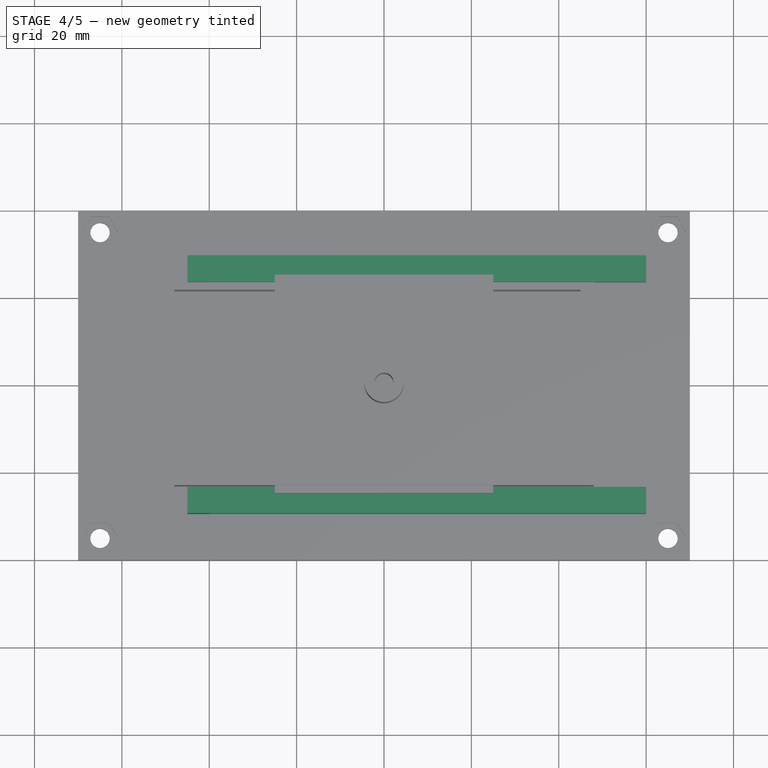
[diagram: stage 4 of 5 — top view after this stage's code; geometry added in this stage tinted green]
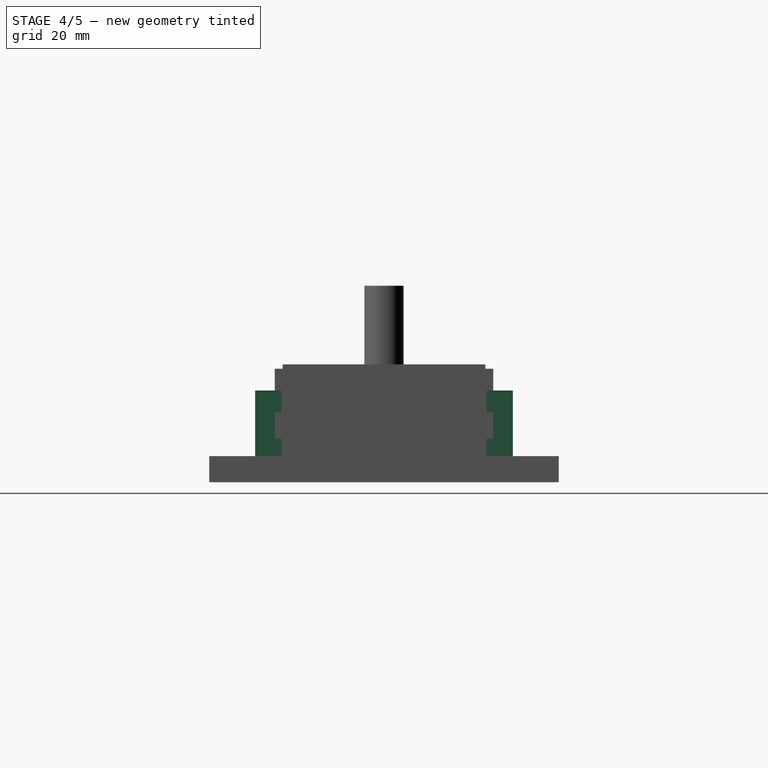
[diagram: stage 4 of 5 — right view after this stage's code; geometry added in this stage tinted green]
FEATURE [Sketcher::SketchObject] Sketch006
  ArcFitTolerance = 1e-06
  AttachmentSupport = -> [XY_Plane002]
  FullyConstrained = true
  MakeInternals = false
  MapMode = 5
  sketch-geometry (16):
    g0: LineSegment StartX=-70 StartY=40 StartZ=0 EndX=-70 EndY=-40 EndZ=0
    g1: LineSegment StartX=-70 StartY=-40 StartZ=0 EndX=70 EndY=-40 EndZ=0
    g2: LineSegment StartX=70 StartY=-40 StartZ=0 EndX=70 EndY=40 EndZ=0
    g3: LineSegment StartX=70 StartY=40 StartZ=0 EndX=-70 EndY=40 EndZ=0
    g4: GeomPoint X=-65 Y=35 Z=0
    g5: GeomPoint X=-65 Y=-35 Z=0
    g6: GeomPoint X=65 Y=-35 Z=0
    g7: GeomPoint X=65 Y=35 Z=0
    g8: Circle CenterX=-65 CenterY=35 CenterZ=0 NormalX=0 NormalY=0 NormalZ=1 AngleXU=0 Radius=2.2
    g9: Circle CenterX=-65 CenterY=-35 CenterZ=0 NormalX=0 NormalY=0 NormalZ=1 AngleXU=0 Radius=2.2
    g10: Circle CenterX=65 CenterY=-35 CenterZ=0 NormalX=0 NormalY=0 NormalZ=1 AngleXU=0 Radius=2.2
    g11: Circle CenterX=65 CenterY=35 CenterZ=0 NormalX=0 NormalY=0 NormalZ=1 AngleXU=0 Radius=2.2
    g12: LineSegment StartX=-60 StartY=18.5 StartZ=0 EndX=-60 EndY=-18.5 EndZ=0
    g13: LineSegment StartX=-60 StartY=-18.5 StartZ=0 EndX=-50 EndY=-18.5 EndZ=0
    g14: LineSegment StartX=-50 StartY=-18.5 StartZ=0 EndX=-50 EndY=18.5 EndZ=0
    g15: LineSegment StartX=-50 StartY=18.5 StartZ=0 EndX=-60 EndY=18.5 EndZ=0
  constraints (34):
    c: Coincident(g0,g1)
    c: Coincident(g1,g2)
    c: Coincident(g2,g3)
    c: Coincident(g3,g0)
    c: Vertical(g0)
    c: Horizontal(g1)
    c: DistanceX(g-1,g2) = 70
    c: DistanceY(g-1,g2) = 40
    c: Symmetric(g0,g2,g-2)
    c: Symmetric(g1,g2,g-1)
    c: DistanceX(g4,g-1) = 65
    c: DistanceY(g-1,g4) = 35
    c: Symmetric(g4,g5,g-1)
    c: Symmetric(g5,g6,g-2)
    c: Symmetric(g6,g7,g-1)
    c: Diameter(g8) = 4.4
    c: Coincident(g8,g4)
    c: Diameter(g9) = 4.4
    c: Coincident(g9,g5)
    c: Diameter(g10) = 4.4
    c: Coincident(g10,g6)
    c: Diameter(g11) = 4.4
    c: Coincident(g11,g7)
    c: Coincident(g12,g13)
    c: Coincident(g13,g14)
    c: Coincident(g14,g15)
    c: Coincident(g15,g12)
    c: Vertical(g12)
    c: Horizontal(g13)
    c: Horizontal(g15)
    c: DistanceY(g13,g-1) = 18.5
    c: DistanceX(g12,g-1) = 60
    c: DistanceX(g13,g-1) = 50
    c: Symmetric(g14,g13,g-1)
FEATURE [PartDesign::Pad] Pad002
  Direction = (0,0,1)
  Length = 6
  Length2 = 10
  Profile = -> Sketch006
  ReferenceAxis = -> Sketch006 [N_Axis]
  Refine = true
  Suppressed = false
  Type = 0
FEATURE [Sketcher::SketchObject] Sketch007
  ArcFitTolerance = 1e-06
  AttachmentSupport = -> [Pad002]
  FullyConstrained = true
  MakeInternals = false
  MapMode = 5
  Placement = pos=(0,0,6) rot=(0,0,1;0rad)
  sketch-geometry (32):
    g0: GeomPoint X=-65 Y=35 Z=0
    g1: GeomPoint X=-65 Y=-35 Z=0
    g2: GeomPoint X=65 Y=-35 Z=0
    g3: GeomPoint X=65 Y=35 Z=0
    g4: LineSegment StartX=-62.925 StartY=31.406 StartZ=0 EndX=-60.85 EndY=35 EndZ=0
    g5: LineSegment StartX=-60.85 StartY=35 StartZ=0 EndX=-62.925 EndY=38.594 EndZ=0
    g6: LineSegment StartX=-62.925 StartY=38.594 StartZ=0 EndX=-67.075 EndY=38.594 EndZ=0
    g7: LineSegment StartX=-67.075 StartY=38.594 StartZ=0 EndX=-69.15 EndY=35 EndZ=0
    g8: LineSegment StartX=-69.15 StartY=35 StartZ=0 EndX=-67.075 EndY=31.406 EndZ=0
    g9: LineSegment StartX=-67.075 StartY=31.406 StartZ=0 EndX=-62.925 EndY=31.406 EndZ=0
    g10: Circle [constr] CenterX=-65 CenterY=35 CenterZ=0 NormalX=0 NormalY=0 NormalZ=1 AngleXU=0 Radius=4.15
    g11: LineSegment StartX=-62.925 StartY=-38.594 StartZ=0 EndX=-60.85 EndY=-35 EndZ=0
    g12: LineSegment StartX=-60.85 StartY=-35 StartZ=0 EndX=-62.925 EndY=-31.406 EndZ=0
    g13: LineSegment StartX=-62.925 StartY=-31.406 StartZ=0 EndX=-67.075 EndY=-31.406 EndZ=0
    g14: LineSegment StartX=-67.075 StartY=-31.406 StartZ=0 EndX=-69.15 EndY=-35 EndZ=0
    g15: LineSegment StartX=-69.15 StartY=-35 StartZ=0 EndX=-67.075 EndY=-38.594 EndZ=0
    g16: LineSegment StartX=-67.075 StartY=-38.594 StartZ=0 EndX=-62.925 EndY=-38.594 EndZ=0
    g17: Circle [constr] CenterX=-65 CenterY=-35 CenterZ=0 NormalX=0 NormalY=0 NormalZ=1 AngleXU=0 Radius=4.15
    g18: LineSegment StartX=67.075 StartY=-38.594 StartZ=0 EndX=69.15 EndY=-35 EndZ=0
    g19: LineSegment StartX=69.15 StartY=-35 StartZ=0 EndX=67.075 EndY=-31.406 EndZ=0
    g20: LineSegment StartX=67.075 StartY=-31.406 StartZ=0 EndX=62.925 EndY=-31.406 EndZ=0
    g21: LineSegment StartX=62.925 StartY=-31.406 StartZ=0 EndX=60.85 EndY=-35 EndZ=0
    g22: LineSegment StartX=60.85 StartY=-35 StartZ=0 EndX=62.925 EndY=-38.594 EndZ=0
    g23: LineSegment StartX=62.925 StartY=-38.594 StartZ=0 EndX=67.075 EndY=-38.594 EndZ=0
    g24: Circle [constr] CenterX=65 CenterY=-35 CenterZ=0 NormalX=0 NormalY=0 NormalZ=1 AngleXU=0 Radius=4.15
    g25: LineSegment StartX=67.075 StartY=31.406 StartZ=0 EndX=69.15 EndY=35 EndZ=0
    g26: LineSegment StartX=69.15 StartY=35 StartZ=0 EndX=67.075 EndY=38.594 EndZ=0
    g27: LineSegment StartX=67.075 StartY=38.594 StartZ=0 EndX=62.925 EndY=38.594 EndZ=0
    g28: LineSegment StartX=62.925 StartY=38.594 StartZ=0 EndX=60.85 EndY=35 EndZ=0
    g29: LineSegment StartX=60.85 StartY=35 StartZ=0 EndX=62.925 EndY=31.406 EndZ=0
    g30: LineSegment StartX=62.925 StartY=31.406 StartZ=0 EndX=67.075 EndY=31.406 EndZ=0
    g31: Circle [constr] CenterX=65 CenterY=35 CenterZ=0 NormalX=0 NormalY=0 NormalZ=1 AngleXU=0 Radius=4.15
  constraints (69):
    c: DistanceX(g0,g-1) = 65
    c: DistanceY(g-1,g0) = 35
    c: Symmetric(g0,g1,g-1)
    c: Symmetric(g3,g0,g-2)
    c: Symmetric(g2,g3,g-1)
    c: Coincident(g4,g5)
    c: Coincident(g5,g6)
    c: Coincident(g6,g7)
    c: Coincident(g7,g8)
    c: Coincident(g8,g9)
    c: Coincident(g9,g4)
    c: Equal(g4, g5-g9) x5
    c: PointOnObject(g4,g10)
    c: PointOnObject(g5,g10)
    c: PointOnObject(g6,g10)
    c: PointOnObject(g7,g10)
    c: PointOnObject(g8,g10)
    c: PointOnObject(g9,g10)
    c: Coincident(g10,g0)
    c: Coincident(g11,g12)
    c: Coincident(g12,g13)
    c: Coincident(g13,g14)
    c: Coincident(g14,g15)
    c: Coincident(g15,g16)
    c: Coincident(g16,g11)
    c: Equal(g11, g12-g16) x5
    c: PointOnObject(g11,g17)
    c: PointOnObject(g12,g17)
    c: PointOnObject(g13,g17)
    c: PointOnObject(g14,g17)
    c: PointOnObject(g15,g17)
    c: PointOnObject(g16,g17)
    c: Coincident(g17,g1)
    c: Coincident(g18,g19)
    c: Coincident(g19,g20)
    c: Coincident(g20,g21)
    c: Coincident(g21,g22)
    c: Coincident(g22,g23)
    c: Coincident(g23,g18)
    c: Equal(g18, g19-g23) x5
    c: PointOnObject(g18,g24)
    c: PointOnObject(g19,g24)
    c: PointOnObject(g20,g24)
    c: PointOnObject(g21,g24)
    c: PointOnObject(g22,g24)
    c: PointOnObject(g23,g24)
    c: Coincident(g24,g2)
    c: Coincident(g25,g26)
    c: Coincident(g26,g27)
    c: Coincident(g27,g28)
    c: Coincident(g28,g29)
    c: Coincident(g29,g30)
    c: Coincident(g30,g25)
    c: Equal(g25, g26-g30) x5
    c: PointOnObject(g25,g31)
    c: PointOnObject(g26,g31)
    c: PointOnObject(g27,g31)
    c: PointOnObject(g28,g31)
    c: PointOnObject(g29,g31)
    c: PointOnObject(g30,g31)
    c: Coincident(g31,g3)
    c: Horizontal(g27)
    c: Distance(g27,g25) = 8.3
    c: Horizontal(g20)
    c: Distance(g20,g18) = 8.3
    c: Horizontal(g6)
    c: Distance(g6,g4) = 8.3
    c: Horizontal(g13)
    c: Distance(g13,g11) = 8.3
FEATURE [PartDesign::Pocket] Pocket004
  BaseFeature = -> Pad002
  Direction = (0,0,-1)
  Length = 2.5
  Length2 = 5
  Profile = -> Sketch007
  ReferenceAxis = -> Sketch007 [N_Axis]
  Refine = true
  Suppressed = false
  Type = 0
FEATURE [PartDesign::Body] Body002  label="brain"
  AllowCompound = false
  Group = -> [Sketch006,Pad002,Sketch007,Pocket004,Sketch008,Pocket005]
  Origin = -> Origin002
  Tip = -> Pocket005
FEATURE [Sketcher::SketchObject] Sketch009
  ArcFitTolerance = 1e-06
  AttachmentSupport = -> [Pocket003]
  FullyConstrained = true
  MakeInternals = false
  MapMode = 5
  Placement = pos=(0,0,6) rot=(0,0,1;0rad)
  sketch-geometry (8):
    g0: LineSegment StartX=-45 StartY=29.5 StartZ=0 EndX=-45 EndY=23.5 EndZ=0
    g1: LineSegment StartX=-45 StartY=23.5 StartZ=0 EndX=60 EndY=23.5 EndZ=0
    g2: LineSegment StartX=60 StartY=23.5 StartZ=0 EndX=60 EndY=29.5 EndZ=0
    g3: LineSegment StartX=60 StartY=29.5 StartZ=0 EndX=-45 EndY=29.5 EndZ=0
    g4: LineSegment StartX=-45 StartY=-23.5 StartZ=0 EndX=-45 EndY=-29.5 EndZ=0
    g5: LineSegment StartX=-45 StartY=-29.5 StartZ=0 EndX=60 EndY=-29.5 EndZ=0
    g6: LineSegment StartX=60 StartY=-29.5 StartZ=0 EndX=60 EndY=-23.5 EndZ=0
    g7: LineSegment StartX=60 StartY=-23.5 StartZ=0 EndX=-45 EndY=-23.5 EndZ=0
  constraints (21):
    c: Coincident(g0,g1)
    c: Coincident(g1,g2)
    c: Coincident(g2,g3)
    c: Coincident(g3,g0)
    c: Vertical(g0)
    c: Vertical(g2)
    c: Horizontal(g1)
    c: Horizontal(g3)
    c: Coincident(g4,g5)
    c: Coincident(g5,g6)
    c: Coincident(g6,g7)
    c: Coincident(g7,g4)
    c: Vertical(g6)
    c: Horizontal(g5)
    c: DistanceY(g1,g2) = 6
    c: DistanceY(g-1,g1) = 23.5
    c: DistanceX(g-1,g1) = 60
    c: DistanceX(g0,g-1) = 45
    c: Symmetric(g4,g0,g-1)
    c: Symmetric(g4,g0,g-1)
    c: Symmetric(g6,g1,g-1)
FEATURE [PartDesign::Pad] Pad003
  BaseFeature = -> Pocket003
  Direction = (0,0,1)
  Length = 15
  Length2 = 10
  Profile = -> Sketch009
  ReferenceAxis = -> Sketch009 [N_Axis]
  Refine = true
  Suppressed = false
  Type = 0
FEATURE [Sketcher::SketchObject] Sketch010
  ArcFitTolerance = 1e-06
  AttachmentSupport = -> [Pad003]
  FullyConstrained = true
  MakeInternals = false
  MapMode = 5
  Placement = pos=(0,23.5,0) rot=(1,0,0;1.5708rad)
  sketch-geometry (4):
    g0: LineSegment StartX=-40 StartY=16 StartZ=0 EndX=-40 EndY=10 EndZ=0
    g1: LineSegment StartX=-40 StartY=10 StartZ=0 EndX=60 EndY=10 EndZ=0
    g2: LineSegment StartX=60 StartY=10 StartZ=0 EndX=60 EndY=16 EndZ=0
    g3: LineSegment StartX=60 StartY=16 StartZ=0 EndX=-40 EndY=16 EndZ=0
  constraints (12):
    c: Coincident(g0,g1)
    c: Coincident(g1,g2)
    c: Coincident(g2,g3)
    c: Coincident(g3,g0)
    c: Vertical(g0)
    c: Vertical(g2)
    c: Horizontal(g1)
    c: Horizontal(g3)
    c: DistanceY(g-1,g1) = 10
    c: DistanceY(g1,g2) = 6
    c: DistanceX(g-1,g2) = 60
    c: DistanceX(g0,g-1) = 40
FEATURE [PartDesign::Pocket] Pocket006
  BaseFeature = -> Pad003
  Direction = (0,1,-2e-16)
  Length = 5
  Length2 = 5
  Profile = -> Sketch010
  ReferenceAxis = -> Sketch010 [N_Axis]
  Refine = true
  Suppressed = false
  Type = 1
FEATURE [Sketcher::SketchObject] Sketch011
  ArcFitTolerance = 1e-06
  AttachmentSupport = -> [Pocket006]
  FullyConstrained = true
  MakeInternals = false
  MapMode = 5
  Placement = pos=(0,-23.5,0) rot=(0,0.707107,0.707107;3.14159rad)
  sketch-geometry (4):
    g0: LineSegment StartX=-60 StartY=16 StartZ=0 EndX=-60 EndY=10 EndZ=0
    g1: LineSegment StartX=-60 StartY=10 StartZ=0 EndX=40 EndY=10 EndZ=0
    g2: LineSegment StartX=40 StartY=10 StartZ=0 EndX=40 EndY=16 EndZ=0
    g3: LineSegment StartX=40 StartY=16 StartZ=0 EndX=-60 EndY=16 EndZ=0
  constraints (12):
    c: Coincident(g0,g1)
    c: Coincident(g1,g2)
    c: Coincident(g2,g3)
    c: Coincident(g3,g0)
    c: Vertical(g0)
    c: Vertical(g2)
    c: Horizontal(g1)
    c: Horizontal(g3)
    c: DistanceY(g1,g2) = 6
    c: DistanceY(g-1,g1) = 10
    c: DistanceX(g0,g-1) = 60
    c: DistanceX(g-1,g2) = 40
FEATURE [PartDesign::Pocket] Pocket007
  BaseFeature = -> Pocket006
  Direction = (0,-1,2e-16)
  Length = 5
  Length2 = 5
  Profile = -> Sketch011
  ReferenceAxis = -> Sketch011 [N_Axis]
  Refine = true
  Suppressed = false
  Type = 1
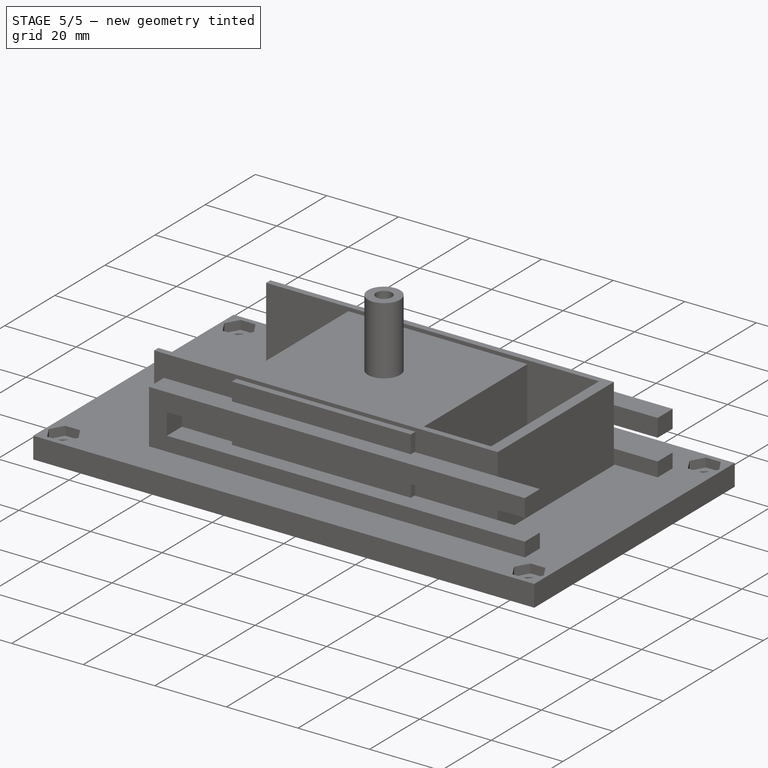
[diagram: stage 5 of 5 — iso view after this stage's code; geometry added in this stage tinted green]
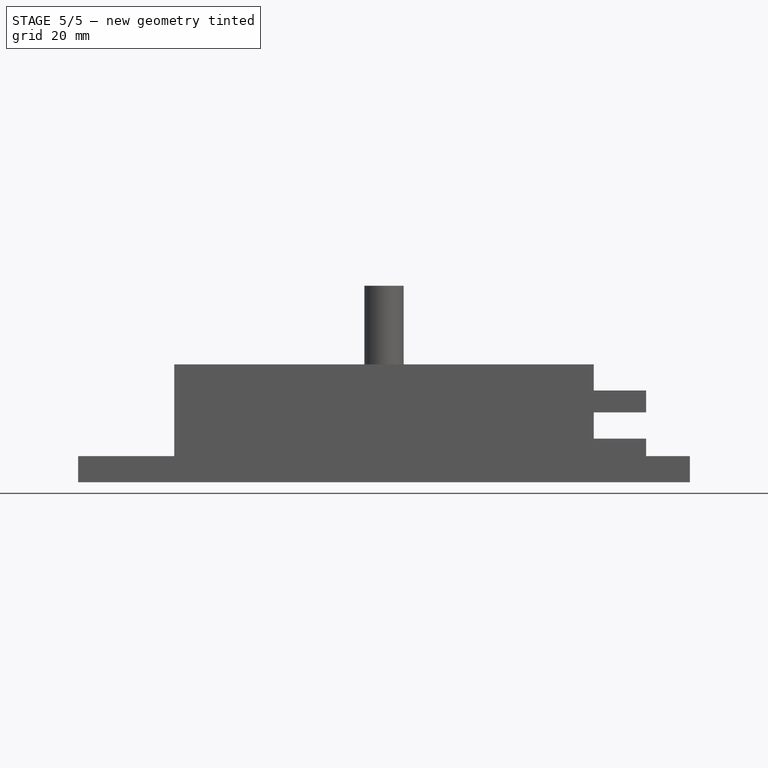
[diagram: stage 5 of 5 — front view after this stage's code; geometry added in this stage tinted green]
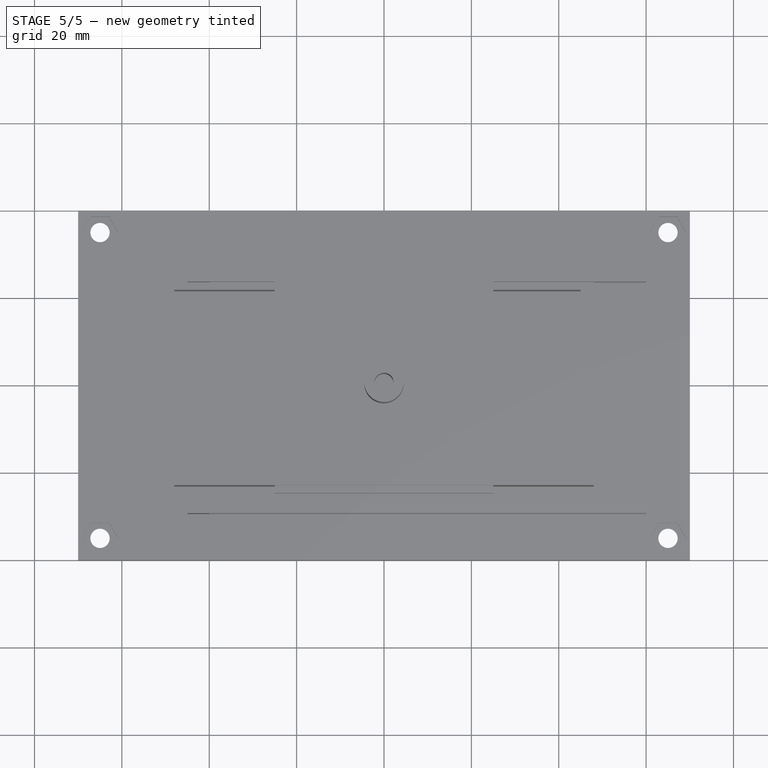
[diagram: stage 5 of 5 — top view after this stage's code; geometry added in this stage tinted green]
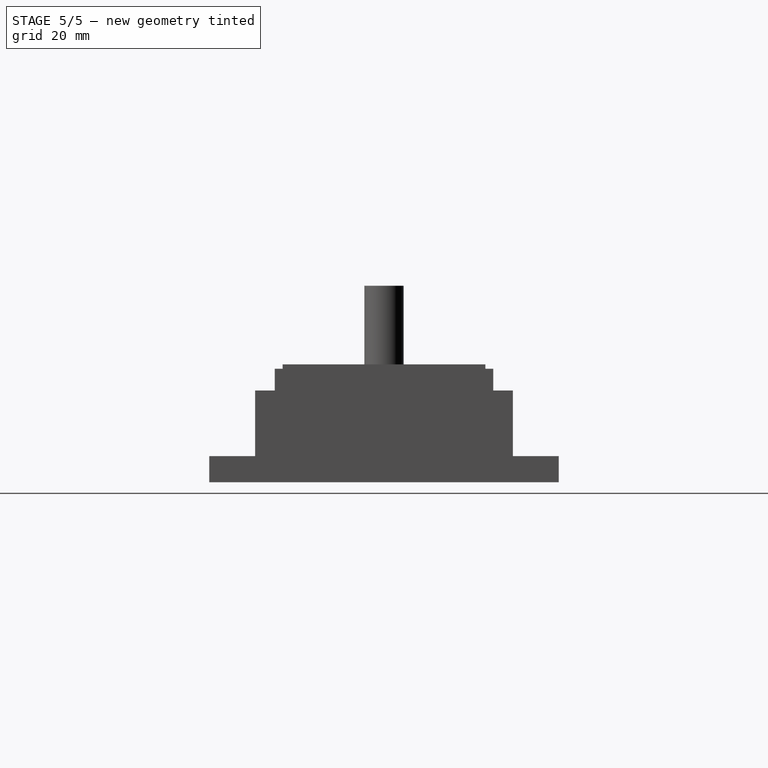
[diagram: stage 5 of 5 — right view after this stage's code; geometry added in this stage tinted green]
FEATURE [Sketcher::SketchObject] Sketch
  ArcFitTolerance = 1e-06
  AttachmentSupport = -> [XY_Plane]
  FullyConstrained = true
  MakeInternals = false
  MapMode = 5
  sketch-geometry (20):
    g0: LineSegment StartX=-70 StartY=40 StartZ=0 EndX=-70 EndY=-40 EndZ=0
    g1: LineSegment StartX=-70 StartY=-40 StartZ=0 EndX=70 EndY=-40 EndZ=0
    g2: LineSegment StartX=70 StartY=-40 StartZ=0 EndX=70 EndY=40 EndZ=0
    g3: LineSegment StartX=70 StartY=40 StartZ=0 EndX=-70 EndY=40 EndZ=0
    g4: GeomPoint X=-65 Y=35 Z=0
    g5: GeomPoint X=-65 Y=-35 Z=0
    g6: GeomPoint X=65 Y=-35 Z=0
    g7: GeomPoint X=65 Y=35 Z=0
    g8: Circle CenterX=-65 CenterY=35 CenterZ=0 NormalX=0 NormalY=0 NormalZ=1 AngleXU=0 Radius=2.2
    g9: Circle CenterX=-65 CenterY=-35 CenterZ=0 NormalX=0 NormalY=0 NormalZ=1 AngleXU=0 Radius=2.2
    g10: Circle CenterX=65 CenterY=35 CenterZ=0 NormalX=0 NormalY=0 NormalZ=1 AngleXU=0 Radius=2.2
    g11: Circle CenterX=65 CenterY=-35 CenterZ=0 NormalX=0 NormalY=0 NormalZ=1 AngleXU=0 Radius=2.2
    g12: GeomPoint X=-65 Y=9 Z=0
    g13: GeomPoint X=-65 Y=-9 Z=0
    g14: GeomPoint X=65 Y=-9 Z=0
    g15: GeomPoint X=65 Y=9 Z=0
    g16: Circle CenterX=-65 CenterY=9 CenterZ=0 NormalX=0 NormalY=0 NormalZ=1 AngleXU=0 Radius=1.75
    g17: Circle CenterX=-65 CenterY=-9 CenterZ=0 NormalX=0 NormalY=0 NormalZ=1 AngleXU=0 Radius=1.75
    g18: Circle CenterX=65 CenterY=-9 CenterZ=0 NormalX=0 NormalY=0 NormalZ=1 AngleXU=0 Radius=1.75
    g19: Circle CenterX=65 CenterY=9 CenterZ=0 NormalX=0 NormalY=0 NormalZ=1 AngleXU=0 Radius=1.75
  constraints (36):
    c: Coincident(g0,g1)
    c: Coincident(g1,g2)
    c: Coincident(g2,g3)
    c: Coincident(g3,g0)
    c: Vertical(g0)
    c: Horizontal(g1)
    c: DistanceX(g-1,g2) = 70
    c: DistanceY(g-1,g2) = 40
    c: Symmetric(g0,g2,g-2)
    c: Symmetric(g1,g2,g-1)
    c: DistanceX(g4,g-1) = 65
    c: DistanceY(g-1,g4) = 35
    c: Symmetric(g5,g4,g-1)
    c: Symmetric(g6,g5,g-2)
    c: Symmetric(g7,g6,g-1)
    c: Diameter(g8) = 4.4
    c: Coincident(g8,g4)
    c: Diameter(g9) = 4.4
    c: Coincident(g9,g5)
    c: Diameter(g10) = 4.4
    c: Coincident(g10,g7)
    c: Diameter(g11) = 4.4
    c: Coincident(g11,g6)
    c: DistanceY(g-1,g12) = 9
    c: DistanceX(g12,g-1) = 65
    c: Symmetric(g13,g12,g-1)
    c: Symmetric(g14,g13,g-2)
    c: Symmetric(g15,g14,g-1)
    c: Diameter(g16) = 3.5
    c: Coincident(g16,g12)
    c: Diameter(g17) = 3.5
    c: Coincident(g17,g13)
    c: Diameter(g18) = 3.5
    c: Coincident(g18,g14)
    c: Diameter(g19) = 3.5
    c: Coincident(g19,g15)
FEATURE [PartDesign::Pad] Pad
  Direction = (0,0,1)
  Length = 6
  Length2 = 10
  Profile = -> Sketch
  ReferenceAxis = -> Sketch [N_Axis]
  Refine = true
  Suppressed = false
  Type = 0
FEATURE [Sketcher::SketchObject] Sketch001
  ArcFitTolerance = 1e-06
  AttachmentSupport = -> [Pad]
  FullyConstrained = true
  MakeInternals = false
  MapMode = 5
  Placement = pos=(0,0,6) rot=(0,0,1;0rad)
  sketch-geometry (32):
    g0: GeomPoint X=-65 Y=35 Z=0
    g1: GeomPoint X=-65 Y=-35 Z=0
    g2: GeomPoint X=65 Y=-35 Z=0
    g3: GeomPoint X=65 Y=35 Z=0
    g4: LineSegment StartX=-62.925 StartY=31.406 StartZ=0 EndX=-60.85 EndY=35 EndZ=0
    g5: LineSegment StartX=-60.85 StartY=35 StartZ=0 EndX=-62.925 EndY=38.594 EndZ=0
    g6: LineSegment StartX=-62.925 StartY=38.594 StartZ=0 EndX=-67.075 EndY=38.594 EndZ=0
    g7: LineSegment StartX=-67.075 StartY=38.594 StartZ=0 EndX=-69.15 EndY=35 EndZ=0
    g8: LineSegment StartX=-69.15 StartY=35 StartZ=0 EndX=-67.075 EndY=31.406 EndZ=0
    g9: LineSegment StartX=-67.075 StartY=31.406 StartZ=0 EndX=-62.925 EndY=31.406 EndZ=0
    g10: Circle [constr] CenterX=-65 CenterY=35 CenterZ=0 NormalX=0 NormalY=0 NormalZ=1 AngleXU=0 Radius=4.15
    g11: LineSegment StartX=-60.85 StartY=-35 StartZ=0 EndX=-62.925 EndY=-31.406 EndZ=0
    g12: LineSegment StartX=-62.925 StartY=-31.406 StartZ=0 EndX=-67.075 EndY=-31.406 EndZ=0
    g13: LineSegment StartX=-67.075 StartY=-31.406 StartZ=0 EndX=-69.15 EndY=-35 EndZ=0
    g14: LineSegment StartX=-69.15 StartY=-35 StartZ=0 EndX=-67.075 EndY=-38.594 EndZ=0
    g15: LineSegment StartX=-67.075 StartY=-38.594 StartZ=0 EndX=-62.925 EndY=-38.594 EndZ=0
    g16: LineSegment StartX=-62.925 StartY=-38.594 StartZ=0 EndX=-60.85 EndY=-35 EndZ=0
    g17: Circle [constr] CenterX=-65 CenterY=-35 CenterZ=0 NormalX=0 NormalY=0 NormalZ=1 AngleXU=0 Radius=4.15
    g18: LineSegment StartX=67.075 StartY=-38.594 StartZ=0 EndX=69.15 EndY=-35 EndZ=0
    g19: LineSegment StartX=69.15 StartY=-35 StartZ=0 EndX=67.075 EndY=-31.406 EndZ=0
    g20: LineSegment StartX=67.075 StartY=-31.406 StartZ=0 EndX=62.925 EndY=-31.406 EndZ=0
    g21: LineSegment StartX=62.925 StartY=-31.406 StartZ=0 EndX=60.85 EndY=-35 EndZ=0
    g22: LineSegment StartX=60.85 StartY=-35 StartZ=0 EndX=62.925 EndY=-38.594 EndZ=0
    g23: LineSegment StartX=62.925 StartY=-38.594 StartZ=0 EndX=67.075 EndY=-38.594 EndZ=0
    g24: Circle [constr] CenterX=65 CenterY=-35 CenterZ=0 NormalX=0 NormalY=0 NormalZ=1 AngleXU=0 Radius=4.15
    g25: LineSegment StartX=67.396 StartY=30.85 StartZ=0 EndX=69.792 EndY=35 EndZ=0
    g26: LineSegment StartX=69.792 StartY=35 StartZ=0 EndX=67.396 EndY=39.15 EndZ=0
    g27: LineSegment StartX=67.396 StartY=39.15 StartZ=0 EndX=62.604 EndY=39.15 EndZ=0
    g28: LineSegment StartX=62.604 StartY=39.15 StartZ=0 EndX=60.208 EndY=35 EndZ=0
    g29: LineSegment StartX=60.208 StartY=35 StartZ=0 EndX=62.604 EndY=30.85 EndZ=0
    g30: LineSegment StartX=62.604 StartY=30.85 StartZ=0 EndX=67.396 EndY=30.85 EndZ=0
    g31: Circle [constr] CenterX=65 CenterY=35 CenterZ=0 NormalX=0 NormalY=0 NormalZ=1 AngleXU=0 Radius=4.79201
  constraints (69):
    c: DistanceX(g0,g-1) = 65
    c: DistanceY(g-1,g0) = 35
    c: Symmetric(g1,g0,g-1)
    c: Symmetric(g2,g1,g-2)
    c: Symmetric(g3,g2,g-1)
    c: Coincident(g4,g5)
    c: Coincident(g5,g6)
    c: Coincident(g6,g7)
    c: Coincident(g7,g8)
    c: Coincident(g8,g9)
    c: Coincident(g9,g4)
    c: Equal(g4, g5-g9) x5
    c: PointOnObject(g4,g10)
    c: PointOnObject(g5,g10)
    c: PointOnObject(g6,g10)
    c: PointOnObject(g7,g10)
    c: PointOnObject(g8,g10)
    c: PointOnObject(g9,g10)
    c: Coincident(g10,g0)
    c: Coincident(g11,g12)
    c: Coincident(g12,g13)
    c: Coincident(g13,g14)
    c: Coincident(g14,g15)
    c: Coincident(g15,g16)
    c: Coincident(g16,g11)
    c: Equal(g11, g12-g16) x5
    c: PointOnObject(g11,g17)
    c: PointOnObject(g12,g17)
    c: PointOnObject(g13,g17)
    c: PointOnObject(g14,g17)
    c: PointOnObject(g15,g17)
    c: PointOnObject(g16,g17)
    c: Coincident(g17,g1)
    c: Coincident(g18,g19)
    c: Coincident(g19,g20)
    c: Coincident(g20,g21)
    c: Coincident(g21,g22)
    c: Coincident(g22,g23)
    c: Coincident(g23,g18)
    c: Equal(g18, g19-g23) x5
    c: PointOnObject(g18,g24)
    c: PointOnObject(g19,g24)
    c: PointOnObject(g20,g24)
    c: PointOnObject(g21,g24)
    c: PointOnObject(g22,g24)
    c: PointOnObject(g23,g24)
    c: Coincident(g24,g2)
    c: Coincident(g25,g26)
    c: Coincident(g26,g27)
    c: Coincident(g27,g28)
    c: Coincident(g28,g29)
    c: Coincident(g29,g30)
    c: Coincident(g30,g25)
    c: Equal(g25, g26-g30) x5
    c: PointOnObject(g25,g31)
    c: PointOnObject(g26,g31)
    c: PointOnObject(g27,g31)
    c: PointOnObject(g28,g31)
    c: PointOnObject(g29,g31)
    c: PointOnObject(g30,g31)
    c: Coincident(g31,g3)
    c: Horizontal(g27)
    c: DistanceY(g25,g27) = 8.3
    c: Horizontal(g20)
    c: Distance(g20,g18) = 8.3
    c: Horizontal(g6)
    c: Distance(g6,g4) = 8.3
    c: Horizontal(g12)
    c: Distance(g12,g15) = 8.3
FEATURE [PartDesign::Pocket] Pocket
  BaseFeature = -> Pad
  Direction = (0,0,-1)
  Length = 2.5
  Length2 = 5
  Profile = -> Sketch001
  ReferenceAxis = -> Sketch001 [N_Axis]
  Refine = true
  Suppressed = false
  Type = 0
FEATURE [Sketcher::SketchObject] Sketch002
  ArcFitTolerance = 1e-06
  AttachmentSupport = -> [Pocket]
  FullyConstrained = true
  MakeInternals = false
  MapMode = 5
  Placement = pos=(0,0,0) rot=(1,0,0;3.14159rad)
  sketch-geometry (32):
    g0: GeomPoint X=-65 Y=35 Z=0
    g1: GeomPoint X=-65 Y=-35 Z=0
    g2: GeomPoint X=65 Y=-35 Z=0
    g3: GeomPoint X=65 Y=35 Z=0
    g4: LineSegment StartX=-62.925 StartY=31.406 StartZ=0 EndX=-60.85 EndY=35 EndZ=0
    g5: LineSegment StartX=-60.85 StartY=35 StartZ=0 EndX=-62.925 EndY=38.594 EndZ=0
    g6: LineSegment StartX=-62.925 StartY=38.594 StartZ=0 EndX=-67.075 EndY=38.594 EndZ=0
    g7: LineSegment StartX=-67.075 StartY=38.594 StartZ=0 EndX=-69.15 EndY=35 EndZ=0
    g8: LineSegment StartX=-69.15 StartY=35 StartZ=0 EndX=-67.075 EndY=31.406 EndZ=0
    g9: LineSegment StartX=-67.075 StartY=31.406 StartZ=0 EndX=-62.925 EndY=31.406 EndZ=0
    g10: Circle [constr] CenterX=-65 CenterY=35 CenterZ=0 NormalX=0 NormalY=0 NormalZ=1 AngleXU=0 Radius=4.15
    g11: LineSegment StartX=-60.85 StartY=-35 StartZ=0 EndX=-62.925 EndY=-31.406 EndZ=0
    g12: LineSegment StartX=-62.925 StartY=-31.406 StartZ=0 EndX=-67.075 EndY=-31.406 EndZ=0
    g13: LineSegment StartX=-67.075 StartY=-31.406 StartZ=0 EndX=-69.15 EndY=-35 EndZ=0
    g14: LineSegment StartX=-69.15 StartY=-35 StartZ=0 EndX=-67.075 EndY=-38.594 EndZ=0
    g15: LineSegment StartX=-67.075 StartY=-38.594 StartZ=0 EndX=-62.925 EndY=-38.594 EndZ=0
    g16: LineSegment StartX=-62.925 StartY=-38.594 StartZ=0 EndX=-60.85 EndY=-35 EndZ=0
    g17: Circle [constr] CenterX=-65 CenterY=-35 CenterZ=0 NormalX=0 NormalY=0 NormalZ=1 AngleXU=0 Radius=4.15
    g18: LineSegment StartX=67.075 StartY=-38.594 StartZ=0 EndX=69.15 EndY=-35 EndZ=0
    g19: LineSegment StartX=69.15 StartY=-35 StartZ=0 EndX=67.075 EndY=-31.406 EndZ=0
    g20: LineSegment StartX=67.075 StartY=-31.406 StartZ=0 EndX=62.925 EndY=-31.406 EndZ=0
    g21: LineSegment StartX=62.925 StartY=-31.406 StartZ=0 EndX=60.85 EndY=-35 EndZ=0
    g22: LineSegment StartX=60.85 StartY=-35 StartZ=0 EndX=62.925 EndY=-38.594 EndZ=0
    g23: LineSegment StartX=62.925 StartY=-38.594 StartZ=0 EndX=67.075 EndY=-38.594 EndZ=0
    g24: Circle [constr] CenterX=65 CenterY=-35 CenterZ=0 NormalX=0 NormalY=0 NormalZ=1 AngleXU=0 Radius=4.15
    g25: LineSegment StartX=67.075 StartY=31.406 StartZ=0 EndX=69.15 EndY=35 EndZ=0
    g26: LineSegment StartX=69.15 StartY=35 StartZ=0 EndX=67.075 EndY=38.594 EndZ=0
    g27: LineSegment StartX=67.075 StartY=38.594 StartZ=0 EndX=62.925 EndY=38.594 EndZ=0
    g28: LineSegment StartX=62.925 StartY=38.594 StartZ=0 EndX=60.85 EndY=35 EndZ=0
    g29: LineSegment StartX=60.85 StartY=35 StartZ=0 EndX=62.925 EndY=31.406 EndZ=0
    g30: LineSegment StartX=62.925 StartY=31.406 StartZ=0 EndX=67.075 EndY=31.406 EndZ=0
    g31: Circle [constr] CenterX=65 CenterY=35 CenterZ=0 NormalX=0 NormalY=0 NormalZ=1 AngleXU=0 Radius=4.15
  constraints (69):
    c: DistanceX(g0,g-1) = 65
    c: DistanceY(g-1,g0) = 35
    c: Symmetric(g1,g0,g-1)
    c: Symmetric(g2,g1,g-2)
    c: Symmetric(g3,g2,g-1)
    c: Coincident(g4,g5)
    c: Coincident(g5,g6)
    c: Coincident(g6,g7)
    c: Coincident(g7,g8)
    c: Coincident(g8,g9)
    c: Coincident(g9,g4)
    c: Equal(g4, g5-g9) x5
    c: PointOnObject(g4,g10)
    c: PointOnObject(g5,g10)
    c: PointOnObject(g6,g10)
    c: PointOnObject(g7,g10)
    c: PointOnObject(g8,g10)
    c: PointOnObject(g9,g10)
    c: Coincident(g10,g0)
    c: Coincident(g11,g12)
    c: Coincident(g12,g13)
    c: Coincident(g13,g14)
    c: Coincident(g14,g15)
    c: Coincident(g15,g16)
    c: Coincident(g16,g11)
    c: Equal(g11, g12-g16) x5
    c: PointOnObject(g11,g17)
    c: PointOnObject(g12,g17)
    c: PointOnObject(g13,g17)
    c: PointOnObject(g14,g17)
    c: PointOnObject(g15,g17)
    c: PointOnObject(g16,g17)
    c: Coincident(g17,g1)
    c: Coincident(g18,g19)
    c: Coincident(g19,g20)
    c: Coincident(g20,g21)
    c: Coincident(g21,g22)
    c: Coincident(g22,g23)
    c: Coincident(g23,g18)
    c: Equal(g18, g19-g23) x5
    c: PointOnObject(g18,g24)
    c: PointOnObject(g19,g24)
    c: PointOnObject(g20,g24)
    c: PointOnObject(g21,g24)
    c: PointOnObject(g22,g24)
    c: PointOnObject(g23,g24)
    c: Coincident(g24,g2)
    c: Coincident(g25,g26)
    c: Coincident(g26,g27)
    c: Coincident(g27,g28)
    c: Coincident(g28,g29)
    c: Coincident(g29,g30)
    c: Coincident(g30,g25)
    c: Equal(g25, g26-g30) x5
    c: PointOnObject(g25,g31)
    c: PointOnObject(g26,g31)
    c: PointOnObject(g27,g31)
    c: PointOnObject(g28,g31)
    c: PointOnObject(g29,g31)
    c: PointOnObject(g30,g31)
    c: Coincident(g31,g3)
    c: Horizontal(g6)
    c: Distance(g6,g4) = 8.3
    c: Horizontal(g12)
    c: Distance(g12,g15) = 8.3
    c: Horizontal(g27)
    c: Distance(g27,g25) = 8.3
    c: Horizontal(g20)
    c: Distance(g20,g18) = 8.3
FEATURE [PartDesign::Pocket] Pocket001
  BaseFeature = -> Pocket
  Direction = (0,0,1)
  Length = 3.2
  Length2 = 5
  Profile = -> Sketch002
  ReferenceAxis = -> Sketch002 [N_Axis]
  Refine = true
  Suppressed = false
  Type = 0
FEATURE [Sketcher::SketchObject] Sketch008
  ArcFitTolerance = 1e-06
  AttachmentSupport = -> [Pocket004]
  FullyConstrained = true
  MakeInternals = false
  MapMode = 5
  Placement = pos=(0,0,0) rot=(1,0,0;3.14159rad)
  sketch-geometry (32):
    g0: GeomPoint X=-65 Y=35 Z=0
    g1: GeomPoint X=-65 Y=-35 Z=0
    g2: GeomPoint X=65 Y=-35 Z=0
    g3: GeomPoint X=65 Y=35 Z=0
    g4: LineSegment StartX=-62.925 StartY=31.406 StartZ=0 EndX=-60.85 EndY=35 EndZ=0
    g5: LineSegment StartX=-60.85 StartY=35 StartZ=0 EndX=-62.925 EndY=38.594 EndZ=0
    g6: LineSegment StartX=-62.925 StartY=38.594 StartZ=0 EndX=-67.075 EndY=38.594 EndZ=0
    g7: LineSegment StartX=-67.075 StartY=38.594 StartZ=0 EndX=-69.15 EndY=35 EndZ=0
    g8: LineSegment StartX=-69.15 StartY=35 StartZ=0 EndX=-67.075 EndY=31.406 EndZ=0
    g9: LineSegment StartX=-67.075 StartY=31.406 StartZ=0 EndX=-62.925 EndY=31.406 EndZ=0
    g10: Circle [constr] CenterX=-65 CenterY=35 CenterZ=0 NormalX=0 NormalY=0 NormalZ=1 AngleXU=0 Radius=4.15
    g11: LineSegment StartX=-60.85 StartY=-35 StartZ=0 EndX=-62.925 EndY=-31.406 EndZ=0
    g12: LineSegment StartX=-62.925 StartY=-31.406 StartZ=0 EndX=-67.075 EndY=-31.406 EndZ=0
    g13: LineSegment StartX=-67.075 StartY=-31.406 StartZ=0 EndX=-69.15 EndY=-35 EndZ=0
    g14: LineSegment StartX=-69.15 StartY=-35 StartZ=0 EndX=-67.075 EndY=-38.594 EndZ=0
    g15: LineSegment StartX=-67.075 StartY=-38.594 StartZ=0 EndX=-62.925 EndY=-38.594 EndZ=0
    g16: LineSegment StartX=-62.925 StartY=-38.594 StartZ=0 EndX=-60.85 EndY=-35 EndZ=0
    g17: Circle [constr] CenterX=-65 CenterY=-35 CenterZ=0 NormalX=0 NormalY=0 NormalZ=1 AngleXU=0 Radius=4.15
    g18: LineSegment StartX=62.925 StartY=-38.594 StartZ=0 EndX=67.075 EndY=-38.594 EndZ=0
    g19: LineSegment StartX=67.075 StartY=-38.594 StartZ=0 EndX=69.15 EndY=-35 EndZ=0
    g20: LineSegment StartX=69.15 StartY=-35 StartZ=0 EndX=67.075 EndY=-31.406 EndZ=0
    g21: LineSegment StartX=67.075 StartY=-31.406 StartZ=0 EndX=62.925 EndY=-31.406 EndZ=0
    g22: LineSegment StartX=62.925 StartY=-31.406 StartZ=0 EndX=60.85 EndY=-35 EndZ=0
    g23: LineSegment StartX=60.85 StartY=-35 StartZ=0 EndX=62.925 EndY=-38.594 EndZ=0
    g24: Circle [constr] CenterX=65 CenterY=-35 CenterZ=0 NormalX=0 NormalY=0 NormalZ=1 AngleXU=0 Radius=4.15
    g25: LineSegment StartX=62.925 StartY=31.406 StartZ=0 EndX=67.075 EndY=31.406 EndZ=0
    g26: LineSegment StartX=67.075 StartY=31.406 StartZ=0 EndX=69.15 EndY=35 EndZ=0
    g27: LineSegment StartX=69.15 StartY=35 StartZ=0 EndX=67.075 EndY=38.594 EndZ=0
    g28: LineSegment StartX=67.075 StartY=38.594 StartZ=0 EndX=62.925 EndY=38.594 EndZ=0
    g29: LineSegment StartX=62.925 StartY=38.594 StartZ=0 EndX=60.85 EndY=35 EndZ=0
    g30: LineSegment StartX=60.85 StartY=35 StartZ=0 EndX=62.925 EndY=31.406 EndZ=0
    g31: Circle [constr] CenterX=65 CenterY=35 CenterZ=0 NormalX=0 NormalY=0 NormalZ=1 AngleXU=0 Radius=4.15
  constraints (69):
    c: DistanceX(g0,g-1) = 65
    c: DistanceY(g-1,g0) = 35
    c: Symmetric(g1,g0,g-1)
    c: Symmetric(g1,g2,g-2)
    c: Symmetric(g3,g2,g-1)
    c: Coincident(g4,g5)
    c: Coincident(g5,g6)
    c: Coincident(g6,g7)
    c: Coincident(g7,g8)
    c: Coincident(g8,g9)
    c: Coincident(g9,g4)
    c: Equal(g4, g5-g9) x5
    c: PointOnObject(g4,g10)
    c: PointOnObject(g5,g10)
    c: PointOnObject(g6,g10)
    c: PointOnObject(g7,g10)
    c: PointOnObject(g8,g10)
    c: PointOnObject(g9,g10)
    c: Coincident(g10,g0)
    c: Coincident(g11,g12)
    c: Coincident(g12,g13)
    c: Coincident(g13,g14)
    c: Coincident(g14,g15)
    c: Coincident(g15,g16)
    c: Coincident(g16,g11)
    c: Equal(g11, g12-g16) x5
    c: PointOnObject(g11,g17)
    c: PointOnObject(g12,g17)
    c: PointOnObject(g13,g17)
    c: PointOnObject(g14,g17)
    c: PointOnObject(g15,g17)
    c: PointOnObject(g16,g17)
    c: Coincident(g17,g1)
    c: Coincident(g18,g19)
    c: Coincident(g19,g20)
    c: Coincident(g20,g21)
    c: Coincident(g21,g22)
    c: Coincident(g22,g23)
    c: Coincident(g23,g18)
    c: Equal(g18, g19-g23) x5
    c: PointOnObject(g18,g24)
    c: PointOnObject(g19,g24)
    c: PointOnObject(g20,g24)
    c: PointOnObject(g21,g24)
    c: PointOnObject(g22,g24)
    c: PointOnObject(g23,g24)
    c: Coincident(g24,g2)
    c: Coincident(g25,g26)
    c: Coincident(g26,g27)
    c: Coincident(g27,g28)
    c: Coincident(g28,g29)
    c: Coincident(g29,g30)
    c: Coincident(g30,g25)
    c: Equal(g25, g26-g30) x5
    c: PointOnObject(g25,g31)
    c: PointOnObject(g26,g31)
    c: PointOnObject(g27,g31)
    c: PointOnObject(g28,g31)
    c: PointOnObject(g29,g31)
    c: PointOnObject(g30,g31)
    c: Coincident(g31,g3)
    c: Horizontal(g28)
    c: Distance(g28,g25) = 8.3
    c: Horizontal(g21)
    c: Distance(g21,g18) = 8.3
    c: Horizontal(g6)
    c: Distance(g6,g4) = 8.3
    c: Horizontal(g12)
    c: Distance(g12,g15) = 8.3
FEATURE [PartDesign::Pocket] Pocket005
  BaseFeature = -> Pocket004
  Direction = (0,0,1)
  Length = 3.2
  Length2 = 5
  Profile = -> Sketch008
  ReferenceAxis = -> Sketch008 [N_Axis]
  Refine = true
  Suppressed = false
  Type = 0
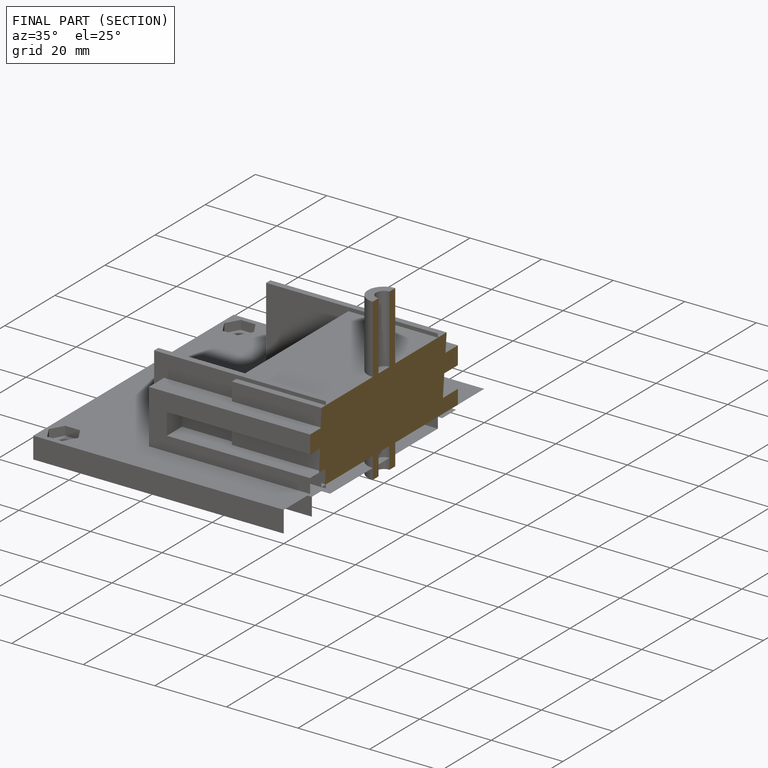
[diagram: finished part — half-section view (interior)]
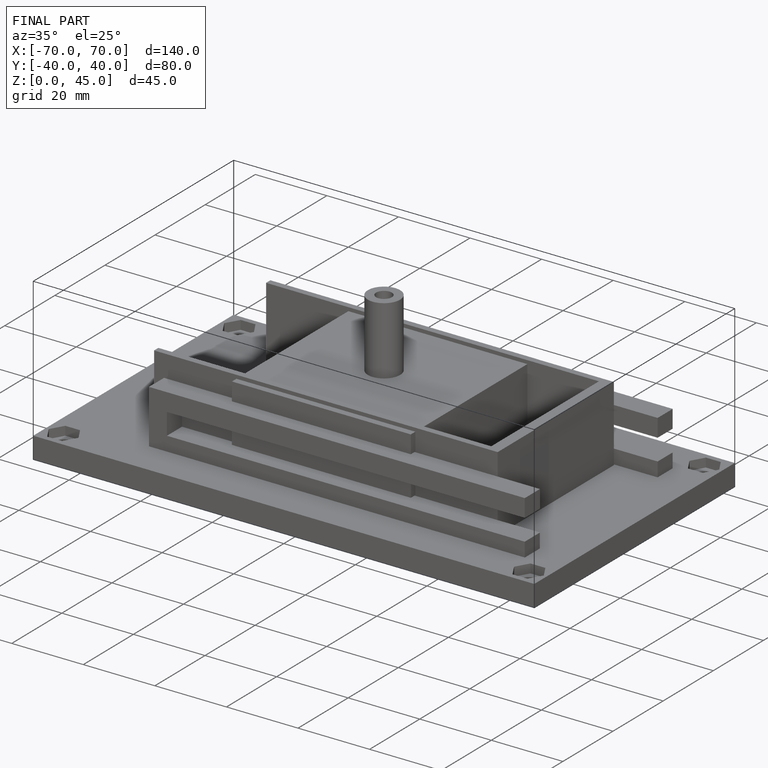
[diagram: finished part — iso view with bounding-box wireframe]
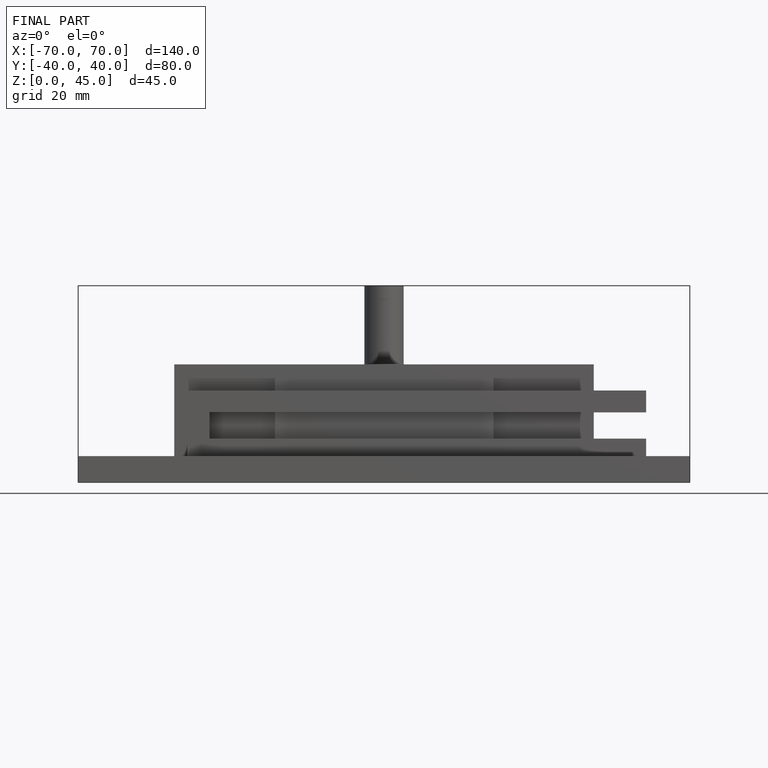
[diagram: finished part — front view with bounding-box wireframe]
